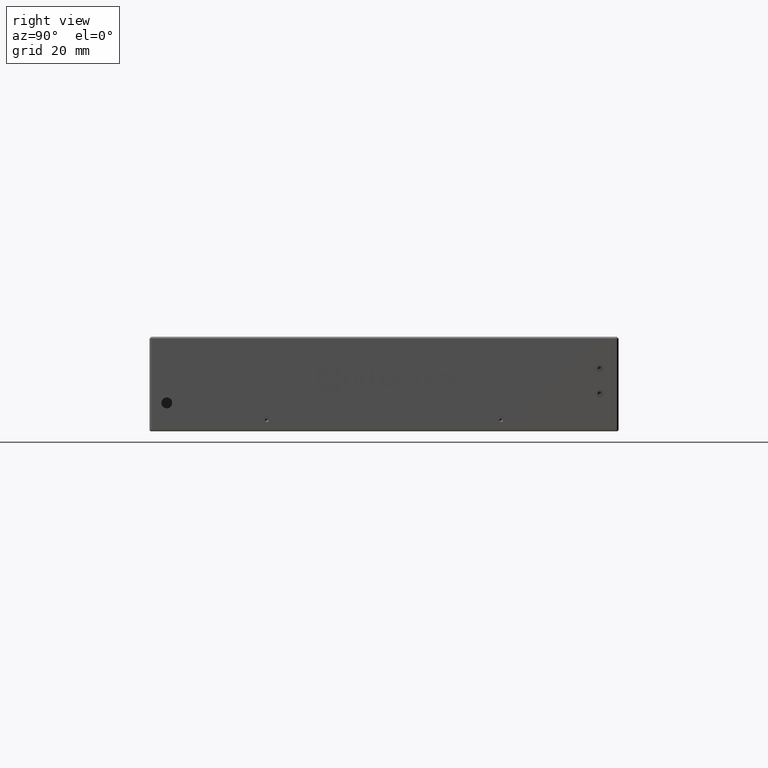
[diagram: clean part render]
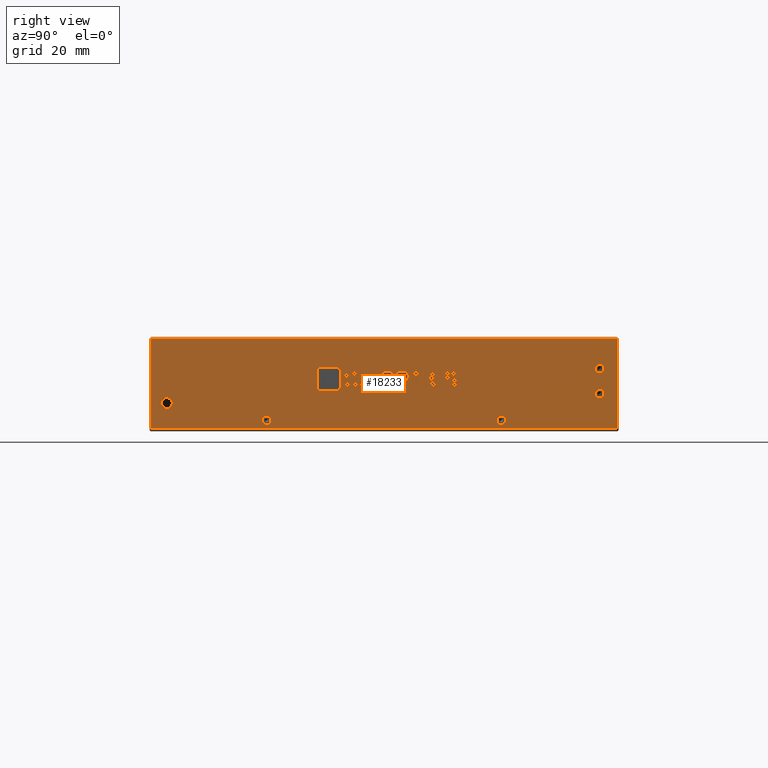
[diagram: same view with one face highlighted and labeled with its STEP entity id]
A machine part, right view. The second image highlights one B-rep face of the part: STEP entity #18233.
In plain terms, the highlighted planar face has unit normal (-1, -0, 0).
Its self-contained STEP definition (entity closure, byte-faithful):
#59 = VERTEX_POINT ( 'NONE', #20254 ) ;
#63 = VERTEX_POINT ( 'NONE', #15595 ) ;
#122 = CARTESIAN_POINT ( 'NONE',  ( 65.16824938067711100, 24.75813051708584900, 14.13872348217448400 ) ) ;
#145 = EDGE_CURVE ( 'NONE', #14082, #13964, #6813, .T. ) ;
#149 = VERTEX_POINT ( 'NONE', #2572 ) ;
#151 = CARTESIAN_POINT ( 'NONE',  ( 65.16824938067712500, -0.5241842476515578000, 13.43307177855084000 ) ) ;
#199 = EDGE_CURVE ( 'NONE', #5570, #13813, #8393, .T. ) ;
#228 = B_SPLINE_CURVE_WITH_KNOTS ( 'NONE', 3,
 ( #1044, #15267, #9018, #19997 ),
 .UNSPECIFIED., .F., .F.,
 ( 4, 4 ),
 ( 4.000000000000000000, 5.000000000000000000 ),
 .UNSPECIFIED. ) ;
#275 = ORIENTED_EDGE ( 'NONE', *, *, #3788, .F. ) ;
#279 = DIRECTION ( 'NONE',  ( -0.0000000000000000000, 1.000000000000000000, 3.331606031765669500E-015 ) ) ;
#280 = CARTESIAN_POINT ( 'NONE',  ( 65.16824938067712500, 27.66524246949252200, 13.48756069147683300 ) ) ;
#286 = B_SPLINE_CURVE_WITH_KNOTS ( 'NONE', 3,
 ( #7281, #5685, #2535, #18279 ),
 .UNSPECIFIED., .F., .F.,
 ( 4, 4 ),
 ( 4.000000000000000000, 5.000000000000000000 ),
 .UNSPECIFIED. ) ;
#289 = EDGE_CURVE ( 'NONE', #16196, #4808, #15920, .T. ) ;
#319 = EDGE_CURVE ( 'NONE', #16228, #4469, #11564, .T. ) ;
#357 = B_SPLINE_CURVE_WITH_KNOTS ( 'NONE', 3,
 ( #15202, #4189, #4255, #15268 ),
 .UNSPECIFIED., .F., .F.,
 ( 4, 4 ),
 ( 1.000000000000000000, 2.000000000000000000 ),
 .UNSPECIFIED. ) ;
#369 = VERTEX_POINT ( 'NONE', #2235 ) ;
#380 = CARTESIAN_POINT ( 'NONE',  ( 65.16824938067712500, 33.78327924612888500, 13.65799065361855300 ) ) ;
#418 = FACE_BOUND ( 'NONE', #12467, .T. ) ;
#436 = VECTOR ( 'NONE', #2802, 1000.000000000000000 ) ;
#448 = VERTEX_POINT ( 'NONE', #8688 ) ;
#515 = ORIENTED_EDGE ( 'NONE', *, *, #17811, .F. ) ;
#544 = CARTESIAN_POINT ( 'NONE',  ( 65.16824938067712500, 34.08709211795113700, 10.53407231938382600 ) ) ;
#553 = VERTEX_POINT ( 'NONE', #7898 ) ;
#563 = CARTESIAN_POINT ( 'NONE',  ( 65.16824938067712500, 15.81965025748621700, 10.88290952868605100 ) ) ;
#603 = CARTESIAN_POINT ( 'NONE',  ( 65.16824938067711100, 32.17781683401410900, 9.045700226360548200 ) ) ;
#604 = CIRCLE ( 'NONE', #9038, 1.399999999999998600 ) ;
#611 = B_SPLINE_CURVE_WITH_KNOTS ( 'NONE', 3,
 ( #18785, #3033, #7790, #9374 ),
 .UNSPECIFIED., .F., .F.,
 ( 4, 4 ),
 ( 9.000000000000000000, 10.00000000000000000 ),
 .UNSPECIFIED. ) ;
#644 = CARTESIAN_POINT ( 'NONE',  ( 65.16824938067711100, 5.167405801023374300, 9.045700226360459300 ) ) ;
#664 = DIRECTION ( 'NONE',  ( 0.0000000000000000000, 0.0000000000000000000, -1.000000000000000000 ) ) ;
#672 = CARTESIAN_POINT ( 'NONE',  ( 65.16824938067712500, 33.02394987890334500, 10.46430487752336100 ) ) ;
#696 = ORIENTED_EDGE ( 'NONE', *, *, #2222, .F. ) ;
#724 = CARTESIAN_POINT ( 'NONE',  ( 65.16824938067712500, -10.22698271773305100, 15.46465684212606500 ) ) ;
#737 = CARTESIAN_POINT ( 'NONE',  ( 65.16824938067712500, 29.66132143109356200, 12.55732813333732900 ) ) ;
#754 = ORIENTED_EDGE ( 'NONE', *, *, #12379, .F. ) ;
#755 = CARTESIAN_POINT ( 'NONE',  ( 65.16824938067712500, 7.293555070898903200, 11.30151417984885700 ) ) ;
#756 = ORIENTED_EDGE ( 'NONE', *, *, #16882, .F. ) ;
#825 = EDGE_CURVE ( 'NONE', #17927, #13226, #17888, .T. ) ;
#834 = VERTEX_POINT ( 'NONE', #5717 ) ;
#835 = CARTESIAN_POINT ( 'NONE',  ( 65.16824938067712500, 21.59060753168828100, 13.44104906356980700 ) ) ;
#850 = CARTESIAN_POINT ( 'NONE',  ( 65.16824938067712500, 27.66524246949252200, 13.48756069147683300 ) ) ;
#903 = FACE_BOUND ( 'NONE', #8215, .T. ) ;
#919 = CARTESIAN_POINT ( 'NONE',  ( 65.16824938067712500, -3.694529350251845000, 15.46465684212607500 ) ) ;
#930 = EDGE_CURVE ( 'NONE', #4469, #5570, #19454, .T. ) ;
#938 = DIRECTION ( 'NONE',  ( -0.0000000000000000000, -1.000000000000000000, -2.934251533065247700E-015 ) ) ;
#955 = CARTESIAN_POINT ( 'NONE',  ( 65.16824938067712500, 32.79963944082852800, 13.19287437454876700 ) ) ;
#957 = CARTESIAN_POINT ( 'NONE',  ( 65.16824938067712500, 25.36562105251038800, 11.62709557519774800 ) ) ;
#979 = CARTESIAN_POINT ( 'NONE',  ( 65.16824938067712500, 1.146313318600481500, 13.25500255194186200 ) ) ;
#985 = CARTESIAN_POINT ( 'NONE',  ( 65.16824938067712500, -4.591718325310594700, 15.46465684212608400 ) ) ;
#988 = VERTEX_POINT ( 'NONE', #20268 ) ;
#989 = VERTEX_POINT ( 'NONE', #10873 ) ;
#1035 = EDGE_CURVE ( 'NONE', #3982, #7492, #611, .T. ) ;
#1039 = ORIENTED_EDGE ( 'NONE', *, *, #3726, .F. ) ;
#1044 = CARTESIAN_POINT ( 'NONE',  ( 65.16824938067712500, 30.29044528182377900, 12.83639790077915600 ) ) ;
#1065 = EDGE_CURVE ( 'NONE', #17169, #6580, #4843, .T. ) ;
#1082 = LINE ( 'NONE', #6271, #13153 ) ;
#1098 = VECTOR ( 'NONE', #20099, 1000.000000000000000 ) ;
#1113 = VERTEX_POINT ( 'NONE', #14245 ) ;
#1121 = CARTESIAN_POINT ( 'NONE',  ( 65.16824938067712500, 31.59926085781094300, 12.20849092403499200 ) ) ;
#1137 = CARTESIAN_POINT ( 'NONE',  ( 65.16824938067712500, 30.18187308063425400, 9.975932784500050900 ) ) ;
#1155 = CARTESIAN_POINT ( 'NONE',  ( 65.16824938067712500, 34.08709211795113700, 10.53407231938382600 ) ) ;
#1156 = DIRECTION ( 'NONE',  ( -0.0000000000000000000, 4.972873964466782800E-015, -1.000000000000000000 ) ) ;
#1157 = CARTESIAN_POINT ( 'NONE',  ( 65.16824938067712500, 23.13089958144520300, 13.44104906356981200 ) ) ;
#1212 = ORIENTED_EDGE ( 'NONE', *, *, #5036, .F. ) ;
#1219 = EDGE_CURVE ( 'NONE', #9359, #19953, #5296, .T. ) ;
#1244 = EDGE_CURVE ( 'NONE', #11274, #5778, #2211, .T. ) ;
#1345 = CARTESIAN_POINT ( 'NONE',  ( 65.16824938067711100, 48.24938067712633200, -2.899999999999940800 ) ) ;
#1384 = CARTESIAN_POINT ( 'NONE',  ( 65.16824938067712500, 2.390364156891194200, 12.74337464496510800 ) ) ;
#1393 = AXIS2_PLACEMENT_3D ( 'NONE', #3662, #14673, #5249 ) ;
#1463 = LINE ( 'NONE', #16909, #17206 ) ;
#1477 = EDGE_CURVE ( 'NONE', #5778, #20122, #5358, .T. ) ;
#1508 = CARTESIAN_POINT ( 'NONE',  ( 65.16824938067712500, 30.18187308063425400, 9.975932784500050900 ) ) ;
#1517 = CARTESIAN_POINT ( 'NONE',  ( 65.16824938067712500, 17.96013159875141700, 14.13872348217445600 ) ) ;
#1557 = CARTESIAN_POINT ( 'NONE',  ( 65.16824938067712500, 13.30301964634506700, 9.138723482174489400 ) ) ;
#1608 = B_SPLINE_CURVE_WITH_KNOTS ( 'NONE', 3,
 ( #7946, #8013, #151, #11171 ),
 .UNSPECIFIED., .F., .F.,
 ( 4, 4 ),
 ( 2.000000000000000000, 3.000000000000000000 ),
 .UNSPECIFIED. ) ;
#1623 = EDGE_CURVE ( 'NONE', #1113, #3127, #1463, .T. ) ;
#1669 = CARTESIAN_POINT ( 'NONE',  ( 65.16824938067712500, 2.412132680417292900, 10.16197929612791200 ) ) ;
#1685 = EDGE_LOOP ( 'NONE', ( #9927, #7033, #12674, #14054 ) ) ;
#1691 = ORIENTED_EDGE ( 'NONE', *, *, #15449, .F. ) ;
#1840 = CARTESIAN_POINT ( 'NONE',  ( 65.16824938067712500, 15.81965025748621700, 10.88290952868605100 ) ) ;
#1859 = CARTESIAN_POINT ( 'NONE',  ( 65.16824938067712500, 16.81762213417625800, 10.88290952868605500 ) ) ;
#1864 = CARTESIAN_POINT ( 'NONE',  ( 65.16824938067712500, 9.578574000049792800, 13.27825836589535100 ) ) ;
#1876 = CARTESIAN_POINT ( 'NONE',  ( 65.16824938067712500, -26.75061932287365400, -2.899999999999937300 ) ) ;
#1882 = B_SPLINE_CURVE_WITH_KNOTS ( 'NONE', 3,
 ( #5749, #8783, #8917, #10502 ),
 .UNSPECIFIED., .F., .F.,
 ( 4, 4 ),
 ( 5.000000000000000000, 6.000000000000000000 ),
 .UNSPECIFIED. ) ;
#1916 = FACE_BOUND ( 'NONE', #2618, .T. ) ;
#1938 = ORIENTED_EDGE ( 'NONE', *, *, #16219, .F. ) ;
#1940 = ORIENTED_EDGE ( 'NONE', *, *, #2492, .F. ) ;
#2048 = VERTEX_POINT ( 'NONE', #8287 ) ;
#2099 = ORIENTED_EDGE ( 'NONE', *, *, #825, .F. ) ;
#2144 = CARTESIAN_POINT ( 'NONE',  ( 65.16824938067712500, 29.66132143109356200, 12.55732813333732900 ) ) ;
#2174 = CARTESIAN_POINT ( 'NONE',  ( 65.16824938067712500, 3.084658369979397500, 11.25500255194186700 ) ) ;
#2211 = B_SPLINE_CURVE_WITH_KNOTS ( 'NONE', 3,
 ( #6299, #1557, #12548, #17301 ),
 .UNSPECIFIED., .F., .F.,
 ( 4, 4 ),
 ( 0.0000000000000000000, 1.000000000000000000 ),
 .UNSPECIFIED. ) ;
#2222 = EDGE_CURVE ( 'NONE', #10585, #988, #11433, .T. ) ;
#2235 = CARTESIAN_POINT ( 'NONE',  ( 65.16824938067712500, -10.68911332103984400, 13.83326944970997900 ) ) ;
#2243 = ORIENTED_EDGE ( 'NONE', *, *, #5279, .F. ) ;
#2269 = ORIENTED_EDGE ( 'NONE', *, *, #6326, .F. ) ;
#2297 = VERTEX_POINT ( 'NONE', #8957 ) ;
#2325 = CARTESIAN_POINT ( 'NONE',  ( 65.16824938067709600, 79.74938067712632500, 15.00000000000006200 ) ) ;
#2327 = CARTESIAN_POINT ( 'NONE',  ( 65.16824938067712500, -1.182107449382512100, 9.107828403753638100 ) ) ;
#2345 = CARTESIAN_POINT ( 'NONE',  ( 65.16824938067709600, 79.74938067712632500, 5.600000000000076900 ) ) ;
#2375 = EDGE_CURVE ( 'NONE', #12892, #18982, #14587, .T. ) ;
#2416 = CARTESIAN_POINT ( 'NONE',  ( 65.16824938067712500, 13.27394987890316900, 14.11546766822095100 ) ) ;
#2424 = CARTESIAN_POINT ( 'NONE',  ( 65.16824938067712500, -58.75061932287363900, 5.750000000000056800 ) ) ;
#2439 = CARTESIAN_POINT ( 'NONE',  ( 65.16824938067712500, 31.33181899734561400, 9.712141545992828600 ) ) ;
#2452 = LINE ( 'NONE', #19038, #18197 ) ;
#2481 = CARTESIAN_POINT ( 'NONE',  ( 65.16824938067712500, 32.72743825099655600, 11.12310693268827300 ) ) ;
#2492 = EDGE_CURVE ( 'NONE', #5413, #14448, #18073, .T. ) ;
#2535 = CARTESIAN_POINT ( 'NONE',  ( 65.16824938067712500, 5.926735168249042100, 9.688885732039171500 ) ) ;
#2542 = ORIENTED_EDGE ( 'NONE', *, *, #7249, .F. ) ;
#2561 = LINE ( 'NONE', #13738, #18796 ) ;
#2568 = CARTESIAN_POINT ( 'NONE',  ( 65.16824938067712500, 1.305723810758213200, 12.74337464496510500 ) ) ;
#2572 = CARTESIAN_POINT ( 'NONE',  ( 65.16824938067712500, 1.435794119033050100, 11.32476999380229500 ) ) ;
#2618 = EDGE_LOOP ( 'NONE', ( #1212, #1039, #9821, #696, #2269, #9236, #11983, #4186, #18888, #13055, #11773, #17825, #20177, #14447 ) ) ;
#2682 = AXIS2_PLACEMENT_3D ( 'NONE', #13375, #3915, #14929 ) ;
#2753 = AXIS2_PLACEMENT_3D ( 'NONE', #2780, #13790, #4357 ) ;
#2775 = CARTESIAN_POINT ( 'NONE',  ( 65.16824938067712500, 6.252181355376973400, 10.99918859845353900 ) ) ;
#2780 = CARTESIAN_POINT ( 'NONE',  ( 65.16824938067712500, -64.25061932287364600, -3.999999999999937800 ) ) ;
#2786 = CARTESIAN_POINT ( 'NONE',  ( 65.16824938067712500, 19.00894176641009300, 14.13872348217445900 ) ) ;
#2787 = VECTOR ( 'NONE', #16126, 1000.000000000000000 ) ;
#2802 = DIRECTION ( 'NONE',  ( -1.665334536937734600E-016, 1.000000000000000000, 0.0000000000000000000 ) ) ;
#2820 = VECTOR ( 'NONE', #11872, 1000.000000000000000 ) ;
#2824 = CARTESIAN_POINT ( 'NONE',  ( 65.16824938067712500, 4.126032085501441000, 10.99918859845353400 ) ) ;
#2858 = DIRECTION ( 'NONE',  ( -0.0000000000000000000, 1.000000000000000000, 3.402735665913043100E-015 ) ) ;
#2860 = ORIENTED_EDGE ( 'NONE', *, *, #1623, .F. ) ;
#2889 = B_SPLINE_CURVE_WITH_KNOTS ( 'NONE', 3,
 ( #15753, #9581, #14312, #4897 ),
 .UNSPECIFIED., .F., .F.,
 ( 4, 4 ),
 ( 3.000000000000000000, 4.000000000000000000 ),
 .UNSPECIFIED. ) ;
#2893 = EDGE_CURVE ( 'NONE', #5067, #20034, #4755, .T. ) ;
#2922 = ORIENTED_EDGE ( 'NONE', *, *, #14417, .F. ) ;
#2956 = CARTESIAN_POINT ( 'NONE',  ( 65.16824938067712500, 20.54923381616679400, 13.44104906356980300 ) ) ;
#3013 = DIRECTION ( 'NONE',  ( -0.0000000000000000000, -1.000000000000000000, -3.331606031764248800E-015 ) ) ;
#3025 = LINE ( 'NONE', #17541, #10904 ) ;
#3033 = CARTESIAN_POINT ( 'NONE',  ( 65.16824938067712500, 31.33884982481993100, 13.27028108087648100 ) ) ;
#3072 = CARTESIAN_POINT ( 'NONE',  ( 65.16824938067712500, 21.59060753168829500, 9.138723482174519600 ) ) ;
#3086 = CARTESIAN_POINT ( 'NONE',  ( 65.16824938067712500, 16.81762213417625800, 10.88290952868605500 ) ) ;
#3127 = VERTEX_POINT ( 'NONE', #10073 ) ;
#3128 = CARTESIAN_POINT ( 'NONE',  ( 65.16824938067712500, -58.75061932287363900, 4.000000000000062200 ) ) ;
#3255 = CARTESIAN_POINT ( 'NONE',  ( 65.16824938067712500, -10.68911332103982700, 9.367329644754431000 ) ) ;
#3276 = VERTEX_POINT ( 'NONE', #7603 ) ;
#3392 = B_SPLINE_CURVE_WITH_KNOTS ( 'NONE', 3,
 ( #5924, #4343, #12249, #2824 ),
 .UNSPECIFIED., .F., .F.,
 ( 4, 4 ),
 ( 3.000000000000000000, 4.000000000000000000 ),
 .UNSPECIFIED. ) ;
#3425 = LINE ( 'NONE', #17842, #14972 ) ;
#3429 = VERTEX_POINT ( 'NONE', #2144 ) ;
#3447 = B_SPLINE_CURVE_WITH_KNOTS ( 'NONE', 3,
 ( #13866, #12274, #13792, #4429 ),
 .UNSPECIFIED., .F., .F.,
 ( 4, 4 ),
 ( 3.000000000000000000, 4.000000000000000000 ),
 .UNSPECIFIED. ) ;
#3450 = EDGE_CURVE ( 'NONE', #12326, #12263, #12816, .T. ) ;
#3507 = ORIENTED_EDGE ( 'NONE', *, *, #5168, .F. ) ;
#3516 = ORIENTED_EDGE ( 'NONE', *, *, #9907, .F. ) ;
#3545 = LINE ( 'NONE', #10950, #16095 ) ;
#3593 = EDGE_CURVE ( 'NONE', #9931, #8780, #2561, .T. ) ;
#3611 = CARTESIAN_POINT ( 'NONE',  ( 65.16824938067712500, -9.329535523598261500, 8.007806174878934900 ) ) ;
#3642 = CARTESIAN_POINT ( 'NONE',  ( 65.16824938067712500, 29.55274922990391700, 10.83639790077912400 ) ) ;
#3662 = CARTESIAN_POINT ( 'NONE',  ( 65.16824938067709600, 79.74938067712632500, 7.000000000000062200 ) ) ;
#3677 = EDGE_CURVE ( 'NONE', #63, #10069, #14382, .T. ) ;
#3726 = EDGE_CURVE ( 'NONE', #3276, #15120, #15962, .T. ) ;
#3779 = CARTESIAN_POINT ( 'NONE',  ( 65.16824938067712500, 7.293555070898903200, 11.30151417984885700 ) ) ;
#3788 = EDGE_CURVE ( 'NONE', #13769, #3429, #3025, .T. ) ;
#3790 = EDGE_CURVE ( 'NONE', #4865, #19549, #19272, .T. ) ;
#3794 = EDGE_LOOP ( 'NONE', ( #14443, #15364, #11846, #13982, #11459, #14199, #2243, #4337 ) ) ;
#3846 = CARTESIAN_POINT ( 'NONE',  ( 65.16824938067712500, 20.54923381616679400, 13.44104906356980300 ) ) ;
#3878 = DIRECTION ( 'NONE',  ( 0.0000000000000000000, 0.0000000000000000000, -1.000000000000000000 ) ) ;
#3884 = CARTESIAN_POINT ( 'NONE',  ( 65.16824938067711100, 27.60020731535527400, 14.20849092403492400 ) ) ;
#3896 = ORIENTED_EDGE ( 'NONE', *, *, #17969, .F. ) ;
#3915 = DIRECTION ( 'NONE',  ( 1.000000000000000000, 1.665334536937734600E-016, 0.0000000000000000000 ) ) ;
#3959 = ORIENTED_EDGE ( 'NONE', *, *, #18187, .T. ) ;
#3967 = EDGE_CURVE ( 'NONE', #16438, #16377, #286, .T. ) ;
#3982 = VERTEX_POINT ( 'NONE', #7346 ) ;
#3988 = CARTESIAN_POINT ( 'NONE',  ( 65.16824938067712500, 32.02597800221319300, 9.696863017058206000 ) ) ;
#3990 = EDGE_CURVE ( 'NONE', #4808, #5640, #1882, .T. ) ;
#4016 = VECTOR ( 'NONE', #11112, 1000.000000000000000 ) ;
#4022 = CARTESIAN_POINT ( 'NONE',  ( 65.16824938067711100, 23.13089958144519500, 14.13872348217447300 ) ) ;
#4037 = ORIENTED_EDGE ( 'NONE', *, *, #13928, .F. ) ;
#4087 = EDGE_CURVE ( 'NONE', #17419, #11696, #3447, .T. ) ;
#4148 = LINE ( 'NONE', #14033, #8354 ) ;
#4151 = DIRECTION ( 'NONE',  ( -1.053011137364058000E-016, 1.000000000000000000, 0.0000000000000000000 ) ) ;
#4177 = VERTEX_POINT ( 'NONE', #3072 ) ;
#4186 = ORIENTED_EDGE ( 'NONE', *, *, #3450, .F. ) ;
#4189 = CARTESIAN_POINT ( 'NONE',  ( 65.16824938067712500, 9.578574000049803400, 9.991211313434606100 ) ) ;
#4193 = B_SPLINE_CURVE_WITH_KNOTS ( 'NONE', 3,
 ( #8789, #10376, #955, #11954 ),
 .UNSPECIFIED., .F., .F.,
 ( 4, 4 ),
 ( 8.000000000000000000, 9.000000000000000000 ),
 .UNSPECIFIED. ) ;
#4255 = CARTESIAN_POINT ( 'NONE',  ( 65.16824938067712500, 10.35250585510661600, 9.138723482174478700 ) ) ;
#4314 = CARTESIAN_POINT ( 'NONE',  ( 65.16824938067712500, 23.73839011686996200, 9.138723482174524900 ) ) ;
#4329 = B_SPLINE_CURVE_WITH_KNOTS ( 'NONE', 3,
 ( #672, #10095, #18008, #8583 ),
 .UNSPECIFIED., .F., .F.,
 ( 4, 4 ),
 ( 2.000000000000000000, 3.000000000000000000 ),
 .UNSPECIFIED. ) ;
#4337 = ORIENTED_EDGE ( 'NONE', *, *, #3990, .F. ) ;
#4343 = CARTESIAN_POINT ( 'NONE',  ( 65.16824938067712500, 4.480277623630124500, 9.720118831011625100 ) ) ;
#4357 = DIRECTION ( 'NONE',  ( -1.053011137364058000E-016, 1.000000000000000000, 0.0000000000000000000 ) ) ;
#4359 = EDGE_CURVE ( 'NONE', #2297, #16196, #6617, .T. ) ;
#4395 = CARTESIAN_POINT ( 'NONE',  ( 65.16824938067712500, 26.19715160956848600, 9.123444953239964400 ) ) ;
#4429 = CARTESIAN_POINT ( 'NONE',  ( 65.16824938067712500, 26.42862808333812200, 11.58058394729075000 ) ) ;
#4469 = VERTEX_POINT ( 'NONE', #16462 ) ;
#4587 = FACE_BOUND ( 'NONE', #12048, .T. ) ;
#4614 = VERTEX_POINT ( 'NONE', #12365 ) ;
#4658 = CARTESIAN_POINT ( 'NONE',  ( 65.16824938067711100, 18.50988822395471100, 12.51081650543025800 ) ) ;
#4702 = DIRECTION ( 'NONE',  ( 0.0000000000000000000, 0.0000000000000000000, -1.000000000000000000 ) ) ;
#4726 = ORIENTED_EDGE ( 'NONE', *, *, #18033, .F. ) ;
#4746 = CARTESIAN_POINT ( 'NONE',  ( 65.16824938067712500, 26.42862808333812200, 11.58058394729075000 ) ) ;
#4755 = CIRCLE ( 'NONE', #11188, 1.399999999999995000 ) ;
#4773 = EDGE_CURVE ( 'NONE', #11343, #14667, #13777, .T. ) ;
#4808 = VERTEX_POINT ( 'NONE', #13211 ) ;
#4834 = ORIENTED_EDGE ( 'NONE', *, *, #17149, .F. ) ;
#4843 = LINE ( 'NONE', #6278, #16894 ) ;
#4865 = VERTEX_POINT ( 'NONE', #19659 ) ;
#4897 = CARTESIAN_POINT ( 'NONE',  ( 65.16824938067712500, -0.9940328144448810100, 11.62709557519765500 ) ) ;
#4942 = CARTESIAN_POINT ( 'NONE',  ( 65.16824938067712500, -3.232262842168593100, 9.367329644754457600 ) ) ;
#4987 = B_SPLINE_CURVE_WITH_KNOTS ( 'NONE', 3,
 ( #2174, #16322, #10071, #644 ),
 .UNSPECIFIED., .F., .F.,
 ( 4, 4 ),
 ( 9.000000000000000000, 10.00000000000000000 ),
 .UNSPECIFIED. ) ;
#5036 = EDGE_CURVE ( 'NONE', #15120, #14564, #9094, .T. ) ;
#5067 = VERTEX_POINT ( 'NONE', #12428 ) ;
#5084 = CARTESIAN_POINT ( 'NONE',  ( 65.16824938067712500, 1.435794119033050100, 11.32476999380229500 ) ) ;
#5091 = ORIENTED_EDGE ( 'NONE', *, *, #3967, .F. ) ;
#5101 = FACE_BOUND ( 'NONE', #5493, .T. ) ;
#5135 = CARTESIAN_POINT ( 'NONE',  ( 65.16824938067712500, 32.04774652573915700, 14.20849092403494000 ) ) ;
#5168 = EDGE_CURVE ( 'NONE', #10537, #17169, #2452, .T. ) ;
#5176 = ORIENTED_EDGE ( 'NONE', *, *, #17853, .F. ) ;
#5249 = DIRECTION ( 'NONE',  ( 0.0000000000000000000, 0.0000000000000000000, -1.000000000000000000 ) ) ;
#5276 = CARTESIAN_POINT ( 'NONE',  ( 65.16824938067712500, 33.45039660686421000, 11.85167642971370900 ) ) ;
#5279 = EDGE_CURVE ( 'NONE', #5640, #14082, #11548, .T. ) ;
#5296 = CIRCLE ( 'NONE', #19413, 1.749999999999994700 ) ;
#5303 = EDGE_LOOP ( 'NONE', ( #4037, #17729, #14698, #12170, #10730, #15011, #5091, #2922, #10884, #16565 ) ) ;
#5331 = VERTEX_POINT ( 'NONE', #13605 ) ;
#5355 = CARTESIAN_POINT ( 'NONE',  ( 65.16824938067712500, 32.04774652573915700, 14.20849092403494000 ) ) ;
#5358 = B_SPLINE_CURVE_WITH_KNOTS ( 'NONE', 3,
 ( #19656, #11826, #2416, #13415 ),
 .UNSPECIFIED., .F., .F.,
 ( 4, 4 ),
 ( 3.000000000000000000, 4.000000000000000000 ),
 .UNSPECIFIED. ) ;
#5413 = VERTEX_POINT ( 'NONE', #1157 ) ;
#5464 = CARTESIAN_POINT ( 'NONE',  ( 65.16824938067712500, -10.68911332103984400, 13.83326944970997900 ) ) ;
#5488 = DIRECTION ( 'NONE',  ( -0.0000000000000000000, 3.315249309644624600E-015, -1.000000000000000000 ) ) ;
#5489 = CARTESIAN_POINT ( 'NONE',  ( 65.16824938067712500, 33.02394987890334500, 10.46430487752336100 ) ) ;
#5493 = EDGE_LOOP ( 'NONE', ( #20353, #17857, #8532, #756, #2860, #13291, #8672 ) ) ;
#5513 = CARTESIAN_POINT ( 'NONE',  ( 65.16824938067712500, 1.435794119033053200, 10.48756069147676400 ) ) ;
#5517 = VECTOR ( 'NONE', #6455, 1000.000000000000000 ) ;
#5570 = VERTEX_POINT ( 'NONE', #11063 ) ;
#5579 = FACE_BOUND ( 'NONE', #6176, .T. ) ;
#5592 = CARTESIAN_POINT ( 'NONE',  ( 65.16824938067712500, 30.71689200978489600, 10.09985111873480400 ) ) ;
#5624 = DIRECTION ( 'NONE',  ( -0.0000000000000000000, -3.295296174582278100E-015, 1.000000000000000000 ) ) ;
#5630 = CARTESIAN_POINT ( 'NONE',  ( 65.16824938067712500, 33.02394987890334500, 10.46430487752336100 ) ) ;
#5640 = VERTEX_POINT ( 'NONE', #4942 ) ;
#5685 = CARTESIAN_POINT ( 'NONE',  ( 65.16824938067712500, 6.280980706377614600, 10.11546766822089400 ) ) ;
#5717 = CARTESIAN_POINT ( 'NONE',  ( 65.16824938067712500, 7.293555070898894300, 14.13872348217441700 ) ) ;
#5749 = CARTESIAN_POINT ( 'NONE',  ( 65.16824938067712500, -4.591718325310571600, 8.007806174878947300 ) ) ;
#5778 = VERTEX_POINT ( 'NONE', #16259 ) ;
#5876 = PLANE ( 'NONE',  #2753 ) ;
#5890 = CIRCLE ( 'NONE', #13171, 1.399999999999998600 ) ;
#5924 = CARTESIAN_POINT ( 'NONE',  ( 65.16824938067712500, 5.189039116328952900, 9.720118831011632200 ) ) ;
#5978 = CARTESIAN_POINT ( 'NONE',  ( 65.16824938067712500, 19.00894176641009300, 14.13872348217445900 ) ) ;
#6028 = CARTESIAN_POINT ( 'NONE',  ( 65.16824938067712500, -1.203875972908508200, 14.13074619715549800 ) ) ;
#6030 = LINE ( 'NONE', #19974, #13914 ) ;
#6073 = CARTESIAN_POINT ( 'NONE',  ( 65.16824938067712500, 27.66524246949252200, 13.48756069147683300 ) ) ;
#6084 = LINE ( 'NONE', #17919, #10277 ) ;
#6107 = CARTESIAN_POINT ( 'NONE',  ( 65.16824938067712500, 34.08709211795113700, 10.53407231938382600 ) ) ;
#6176 = EDGE_LOOP ( 'NONE', ( #13176, #4726, #275, #7627, #17617, #19485, #20396, #1691, #18569, #15806 ) ) ;
#6182 = CARTESIAN_POINT ( 'NONE',  ( 65.16824938067712500, 30.67349017095300600, 9.309491464867825500 ) ) ;
#6184 = ORIENTED_EDGE ( 'NONE', *, *, #14881, .F. ) ;
#6186 = ORIENTED_EDGE ( 'NONE', *, *, #20323, .F. ) ;
#6187 = CARTESIAN_POINT ( 'NONE',  ( 65.16824938067712500, 18.52408508712365900, 13.59586247622529200 ) ) ;
#6237 = CARTESIAN_POINT ( 'NONE',  ( 65.16824938067712500, 30.29044528182377900, 12.83639790077915600 ) ) ;
#6249 = CARTESIAN_POINT ( 'NONE',  ( 65.16824938067711100, 32.17781683401410900, 9.045700226360548200 ) ) ;
#6271 = CARTESIAN_POINT ( 'NONE',  ( 65.16824938067712500, 21.59060753168828100, 13.44104906356980700 ) ) ;
#6278 = CARTESIAN_POINT ( 'NONE',  ( 65.16824938067712500, 24.75813051708585300, 14.13872348217448000 ) ) ;
#6299 = CARTESIAN_POINT ( 'NONE',  ( 65.16824938067712500, 11.82776275072584000, 9.045700226360477100 ) ) ;
#6326 = EDGE_CURVE ( 'NONE', #20185, #10585, #4329, .T. ) ;
#6339 = CARTESIAN_POINT ( 'NONE',  ( 65.16824938067709600, 79.74938067712632500, 16.40000000000004500 ) ) ;
#6349 = B_SPLINE_CURVE_WITH_KNOTS ( 'NONE', 3,
 ( #11391, #380, #14547, #5135 ),
 .UNSPECIFIED., .F., .F.,
 ( 4, 4 ),
 ( 6.000000000000000000, 7.000000000000000000 ),
 .UNSPECIFIED. ) ;
#6455 = DIRECTION ( 'NONE',  ( -0.0000000000000000000, -4.972873964466782800E-015, 1.000000000000000000 ) ) ;
#6536 = CARTESIAN_POINT ( 'NONE',  ( 65.16824938067712500, 26.44296015472801600, 12.82078135129288300 ) ) ;
#6580 = VERTEX_POINT ( 'NONE', #122 ) ;
#6617 = B_SPLINE_CURVE_WITH_KNOTS ( 'NONE', 3,
 ( #9888, #19295, #13049, #3611 ),
 .UNSPECIFIED., .F., .F.,
 ( 4, 4 ),
 ( 7.000000000000000000, 8.000000000000000000 ),
 .UNSPECIFIED. ) ;
#6658 = EDGE_LOOP ( 'NONE', ( #18280, #19899, #3507, #20109 ) ) ;
#6813 = B_SPLINE_CURVE_WITH_KNOTS ( 'NONE', 3,
 ( #10408, #7251, #919, #985 ),
 .UNSPECIFIED., .F., .F.,
 ( 4, 4 ),
 ( 3.000000000000000000, 4.000000000000000000 ),
 .UNSPECIFIED. ) ;
#6815 = CARTESIAN_POINT ( 'NONE',  ( 65.16824938067712500, 27.88225166365188200, 9.720118831011705000 ) ) ;
#6866 = CARTESIAN_POINT ( 'NONE',  ( 65.16824938067712500, 14.80004506549058600, 14.13872348217444300 ) ) ;
#6938 = CARTESIAN_POINT ( 'NONE',  ( 65.16824938067712500, 30.29044528182377900, 12.83639790077915600 ) ) ;
#7003 = CARTESIAN_POINT ( 'NONE',  ( 65.16824938067712500, 0.04734090107771832300, 11.32476999380229000 ) ) ;
#7033 = ORIENTED_EDGE ( 'NONE', *, *, #3593, .F. ) ;
#7055 = EDGE_LOOP ( 'NONE', ( #3959, #14791 ) ) ;
#7103 = CARTESIAN_POINT ( 'NONE',  ( 65.16824938067712500, 0.9222732969671507700, 9.704502281525437400 ) ) ;
#7146 = CARTESIAN_POINT ( 'NONE',  ( 65.16824938067712500, -3.232262842168608600, 14.10514696272902500 ) ) ;
#7149 = DIRECTION ( 'NONE',  ( -0.0000000000000000000, 1.000000000000000000, 3.295296257828142900E-015 ) ) ;
#7158 = DIRECTION ( 'NONE',  ( 1.000000000000000000, 1.665334536937734600E-016, 0.0000000000000000000 ) ) ;
#7197 = VERTEX_POINT ( 'NONE', #12587 ) ;
#7223 = VECTOR ( 'NONE', #14224, 1000.000000000000000 ) ;
#7231 = CARTESIAN_POINT ( 'NONE',  ( 65.16824938067711100, 85.24938067712626800, -3.999999999999937800 ) ) ;
#7249 = EDGE_CURVE ( 'NONE', #16010, #17162, #12672, .T. ) ;
#7251 = CARTESIAN_POINT ( 'NONE',  ( 65.16824938067712500, -3.232262842168608600, 15.00266213192530000 ) ) ;
#7260 = VERTEX_POINT ( 'NONE', #6339 ) ;
#7281 = CARTESIAN_POINT ( 'NONE',  ( 65.16824938067712500, 6.252181355376973400, 10.99918859845353900 ) ) ;
#7343 = DIRECTION ( 'NONE',  ( -1.000000000000000000, -1.665334536937734600E-016, -0.0000000000000000000 ) ) ;
#7346 = CARTESIAN_POINT ( 'NONE',  ( 65.16824938067712500, 31.35345231265129200, 12.83639790077916000 ) ) ;
#7353 = VERTEX_POINT ( 'NONE', #14444 ) ;
#7449 = CARTESIAN_POINT ( 'NONE',  ( 65.16824938067712500, 32.17781683401410200, 12.11546766822098700 ) ) ;
#7492 = VERTEX_POINT ( 'NONE', #19435 ) ;
#7540 = CARTESIAN_POINT ( 'NONE',  ( 65.16824938067712500, 14.80004506549058600, 14.13872348217444300 ) ) ;
#7548 = CARTESIAN_POINT ( 'NONE',  ( 65.16824938067712500, -0.9940328144448810100, 11.62709557519765500 ) ) ;
#7560 = VECTOR ( 'NONE', #7149, 1000.000000000000000 ) ;
#7585 = ORIENTED_EDGE ( 'NONE', *, *, #10106, .F. ) ;
#7603 = CARTESIAN_POINT ( 'NONE',  ( 65.16824938067712500, 30.18187308063425400, 9.975932784500050900 ) ) ;
#7627 = ORIENTED_EDGE ( 'NONE', *, *, #11079, .F. ) ;
#7634 = CARTESIAN_POINT ( 'NONE',  ( 65.16824938067712500, -1.977807827965313300, 13.27825836589531100 ) ) ;
#7654 = CARTESIAN_POINT ( 'NONE',  ( 65.16824938067712500, -2.035406529966368600, 11.65035138915111200 ) ) ;
#7770 = VECTOR ( 'NONE', #13869, 1000.000000000000000 ) ;
#7790 = CARTESIAN_POINT ( 'NONE',  ( 65.16824938067712500, 31.57749233428463500, 13.48756069147684600 ) ) ;
#7823 = CIRCLE ( 'NONE', #19362, 1.399999999999984600 ) ;
#7835 = DIRECTION ( 'NONE',  ( -0.0000000000000000000, -7.277376533366101600E-015, 1.000000000000000000 ) ) ;
#7898 = CARTESIAN_POINT ( 'NONE',  ( 65.16824938067712500, 0.04734090107771572000, 12.02244441240698000 ) ) ;
#7928 = CARTESIAN_POINT ( 'NONE',  ( 65.16824938067712500, 2.122651879984843500, 9.417793249616304200 ) ) ;
#7937 = VERTEX_POINT ( 'NONE', #18961 ) ;
#7943 = B_SPLINE_CURVE_WITH_KNOTS ( 'NONE', 3,
 ( #7449, #1121, #9029, #20008 ),
 .UNSPECIFIED., .F., .F.,
 ( 4, 4 ),
 ( 10.00000000000000000, 11.00000000000000000 ),
 .UNSPECIFIED. ) ;
#7946 = CARTESIAN_POINT ( 'NONE',  ( 65.16824938067712500, -0.9940328144448810100, 11.62709557519765500 ) ) ;
#7959 = CARTESIAN_POINT ( 'NONE',  ( 65.16824938067712500, 28.64158103087732200, 12.55732813333732500 ) ) ;
#7988 = ORIENTED_EDGE ( 'NONE', *, *, #8687, .F. ) ;
#8003 = CARTESIAN_POINT ( 'NONE',  ( 65.16824938067712500, 1.305723810758213200, 12.74337464496510500 ) ) ;
#8013 = CARTESIAN_POINT ( 'NONE',  ( 65.16824938067712500, -0.9506309756131043900, 12.80516480180664200 ) ) ;
#8058 = EDGE_CURVE ( 'NONE', #13543, #15045, #12205, .T. ) ;
#8089 = DIRECTION ( 'NONE',  ( 1.000000000000000000, 1.665334536937734600E-016, 0.0000000000000000000 ) ) ;
#8181 = CARTESIAN_POINT ( 'NONE',  ( 65.16824938067712500, 29.55274922990392400, 9.882909528686099100 ) ) ;
#8215 = EDGE_LOOP ( 'NONE', ( #18527, #515, #13800, #10986 ) ) ;
#8283 = ORIENTED_EDGE ( 'NONE', *, *, #4773, .F. ) ;
#8287 = CARTESIAN_POINT ( 'NONE',  ( 65.16824938067712500, 6.252181355376962700, 14.13872348217441300 ) ) ;
#8293 = FACE_BOUND ( 'NONE', #7055, .T. ) ;
#8304 = EDGE_CURVE ( 'NONE', #17762, #3982, #7943, .T. ) ;
#8325 = CARTESIAN_POINT ( 'NONE',  ( 65.16824938067712500, 11.82776275072582500, 14.20849092403486900 ) ) ;
#8354 = VECTOR ( 'NONE', #3013, 1000.000000000000000 ) ;
#8360 = EDGE_CURVE ( 'NONE', #5331, #12572, #604, .T. ) ;
#8392 = CARTESIAN_POINT ( 'NONE',  ( 65.16824938067712500, 30.33384712065566900, 13.73539735994626000 ) ) ;
#8393 = B_SPLINE_CURVE_WITH_KNOTS ( 'NONE', 3,
 ( #17610, #12789, #14428, #8181 ),
 .UNSPECIFIED., .F., .F.,
 ( 4, 4 ),
 ( 6.000000000000000000, 7.000000000000000000 ),
 .UNSPECIFIED. ) ;
#8432 = ORIENTED_EDGE ( 'NONE', *, *, #11348, .F. ) ;
#8527 = VERTEX_POINT ( 'NONE', #1840 ) ;
#8532 = ORIENTED_EDGE ( 'NONE', *, *, #9634, .F. ) ;
#8569 = VECTOR ( 'NONE', #15137, 1000.000000000000000 ) ;
#8583 = CARTESIAN_POINT ( 'NONE',  ( 65.16824938067712500, 32.02597800221319300, 9.696863017058206000 ) ) ;
#8598 = EDGE_CURVE ( 'NONE', #7353, #12326, #6349, .T. ) ;
#8610 = DIRECTION ( 'NONE',  ( 1.000000000000000000, 1.665334536937734600E-016, 0.0000000000000000000 ) ) ;
#8634 = CARTESIAN_POINT ( 'NONE',  ( 65.16824938067712500, 29.55274922990391700, 10.83639790077912400 ) ) ;
#8651 = CARTESIAN_POINT ( 'NONE',  ( 65.16824938067712500, 4.126032085501429400, 14.13872348217440800 ) ) ;
#8672 = ORIENTED_EDGE ( 'NONE', *, *, #11907, .F. ) ;
#8687 = EDGE_CURVE ( 'NONE', #11405, #5413, #6084, .T. ) ;
#8688 = CARTESIAN_POINT ( 'NONE',  ( 65.16824938067712500, 85.24938067712626800, -3.999999999999937800 ) ) ;
#8722 = CARTESIAN_POINT ( 'NONE',  ( 65.16824938067712500, 19.00894176641009600, 13.44104906356980000 ) ) ;
#8748 = VERTEX_POINT ( 'NONE', #850 ) ;
#8775 = FACE_OUTER_BOUND ( 'NONE', #1685, .T. ) ;
#8780 = VERTEX_POINT ( 'NONE', #10278 ) ;
#8783 = CARTESIAN_POINT ( 'NONE',  ( 65.16824938067712500, -3.694529350251822400, 8.007806174878952600 ) ) ;
#8789 = CARTESIAN_POINT ( 'NONE',  ( 65.16824938067712500, 32.06937984104507000, 13.48756069147684800 ) ) ;
#8795 = VECTOR ( 'NONE', #10639, 1000.000000000000000 ) ;
#8882 = CARTESIAN_POINT ( 'NONE',  ( 65.16824938067712500, 2.072084005457987700, 13.72011883101162000 ) ) ;
#8917 = CARTESIAN_POINT ( 'NONE',  ( 65.16824938067712500, -3.232262842168593900, 8.470004742250159400 ) ) ;
#8954 = B_SPLINE_CURVE_WITH_KNOTS ( 'NONE', 3,
 ( #13327, #724, #14878, #5464 ),
 .UNSPECIFIED., .F., .F.,
 ( 4, 4 ),
 ( 1.000000000000000000, 2.000000000000000000 ),
 .UNSPECIFIED. ) ;
#8956 = DIRECTION ( 'NONE',  ( -0.0000000000000000000, 3.469446951953649700E-015, -1.000000000000000000 ) ) ;
#8957 = CARTESIAN_POINT ( 'NONE',  ( 65.16824938067712500, -10.68911332103982700, 9.367329644754431000 ) ) ;
#8959 = EDGE_CURVE ( 'NONE', #20221, #4865, #17656, .T. ) ;
#8993 = LINE ( 'NONE', #1859, #12697 ) ;
#9018 = CARTESIAN_POINT ( 'NONE',  ( 65.16824938067712500, 30.80356047922761000, 11.46430487752335200 ) ) ;
#9029 = CARTESIAN_POINT ( 'NONE',  ( 65.16824938067712500, 31.32424733698890100, 12.44868832803712500 ) ) ;
#9038 = AXIS2_PLACEMENT_3D ( 'NONE', #18788, #15930, #20301 ) ;
#9094 = B_SPLINE_CURVE_WITH_KNOTS ( 'NONE', 3,
 ( #13946, #12351, #15509, #6107 ),
 .UNSPECIFIED., .F., .F.,
 ( 4, 4 ),
 ( 12.00000000000000000, 13.00000000000000000 ),
 .UNSPECIFIED. ) ;
#9135 = EDGE_CURVE ( 'NONE', #18758, #17927, #1608, .T. ) ;
#9236 = ORIENTED_EDGE ( 'NONE', *, *, #13571, .F. ) ;
#9238 = CARTESIAN_POINT ( 'NONE',  ( 65.16824938067712500, 28.64158103087732200, 12.55732813333732500 ) ) ;
#9255 = EDGE_CURVE ( 'NONE', #16242, #17419, #17279, .T. ) ;
#9277 = FACE_BOUND ( 'NONE', #14986, .T. ) ;
#9352 = EDGE_LOOP ( 'NONE', ( #11994, #8432 ) ) ;
#9359 = VERTEX_POINT ( 'NONE', #2424 ) ;
#9374 = CARTESIAN_POINT ( 'NONE',  ( 65.16824938067712500, 32.06937984104507000, 13.48756069147684800 ) ) ;
#9402 = LINE ( 'NONE', #15652, #13576 ) ;
#9426 = VECTOR ( 'NONE', #13895, 1000.000000000000000 ) ;
#9482 = LINE ( 'NONE', #2786, #1098 ) ;
#9581 = CARTESIAN_POINT ( 'NONE',  ( 65.16824938067712500, -0.4949792719894887700, 9.797525537339355500 ) ) ;
#9634 = EDGE_CURVE ( 'NONE', #8527, #12892, #8993, .T. ) ;
#9707 = CARTESIAN_POINT ( 'NONE',  ( 65.16824938067712500, 10.35250585510659800, 14.14636274664171400 ) ) ;
#9713 = CARTESIAN_POINT ( 'NONE',  ( 65.16824938067712500, 26.85507481129900100, 13.45632759250436900 ) ) ;
#9821 = ORIENTED_EDGE ( 'NONE', *, *, #16426, .F. ) ;
#9888 = CARTESIAN_POINT ( 'NONE',  ( 65.16824938067712500, -10.68911332103982700, 9.367329644754431000 ) ) ;
#9907 = EDGE_CURVE ( 'NONE', #19693, #63, #12530, .T. ) ;
#9920 = LINE ( 'NONE', #2956, #9426 ) ;
#9927 = ORIENTED_EDGE ( 'NONE', *, *, #18190, .F. ) ;
#9931 = VERTEX_POINT ( 'NONE', #16798 ) ;
#9935 = EDGE_CURVE ( 'NONE', #18267, #1113, #20018, .T. ) ;
#10002 = DIRECTION ( 'NONE',  ( -0.0000000000000000000, -3.057094650287018500E-015, 1.000000000000000000 ) ) ;
#10058 = CARTESIAN_POINT ( 'NONE',  ( 65.16824938067711100, 5.167405801023374300, 9.045700226360459300 ) ) ;
#10068 = DIRECTION ( 'NONE',  ( -0.0000000000000000000, 1.000000000000000000, 3.378690702683114700E-015 ) ) ;
#10069 = VERTEX_POINT ( 'NONE', #7654 ) ;
#10071 = CARTESIAN_POINT ( 'NONE',  ( 65.16824938067712500, 3.735550744236039800, 8.999188598453475400 ) ) ;
#10073 = CARTESIAN_POINT ( 'NONE',  ( 65.16824938067712500, 15.81965025748622400, 9.138723482174498300 ) ) ;
#10089 = DIRECTION ( 'NONE',  ( 1.000000000000000000, 1.665334536937734600E-016, 0.0000000000000000000 ) ) ;
#10095 = CARTESIAN_POINT ( 'NONE',  ( 65.16824938067712500, 33.00934739107220400, 9.952676970546601600 ) ) ;
#10106 = EDGE_CURVE ( 'NONE', #553, #15147, #3545, .T. ) ;
#10158 = CARTESIAN_POINT ( 'NONE',  ( 65.16824938067712500, 29.42970974910340900, 13.64237410413230700 ) ) ;
#10169 = CARTESIAN_POINT ( 'NONE',  ( 65.16824938067712500, 4.126032085501429400, 14.13872348217440800 ) ) ;
#10277 = VECTOR ( 'NONE', #10068, 1000.000000000000000 ) ;
#10278 = CARTESIAN_POINT ( 'NONE',  ( 65.16824938067711100, -63.75061932287365400, 24.70000000000009200 ) ) ;
#10296 = CARTESIAN_POINT ( 'NONE',  ( 65.16824938067712500, 23.73839011686996200, 9.138723482174524900 ) ) ;
#10376 = CARTESIAN_POINT ( 'NONE',  ( 65.16824938067712500, 32.50326302114203300, 13.47194414199061900 ) ) ;
#10379 = CARTESIAN_POINT ( 'NONE',  ( 65.16824938067711100, 27.60020731535527400, 14.20849092403492400 ) ) ;
#10381 = EDGE_CURVE ( 'NONE', #12572, #5331, #5890, .T. ) ;
#10401 = CARTESIAN_POINT ( 'NONE',  ( 65.16824938067712500, 0.8066702683028249600, 13.51081650543019700 ) ) ;
#10408 = CARTESIAN_POINT ( 'NONE',  ( 65.16824938067712500, -3.232262842168600200, 14.10514696272901800 ) ) ;
#10415 = EDGE_CURVE ( 'NONE', #7197, #448, #13771, .T. ) ;
#10433 = VECTOR ( 'NONE', #5488, 1000.000000000000000 ) ;
#10472 = VECTOR ( 'NONE', #14763, 1000.000000000000000 ) ;
#10473 = CARTESIAN_POINT ( 'NONE',  ( 65.16824938067712500, 0.2859834105419676300, 14.20849092403482800 ) ) ;
#10502 = CARTESIAN_POINT ( 'NONE',  ( 65.16824938067712500, -3.232262842168593100, 9.367329644754457600 ) ) ;
#10528 = AXIS2_PLACEMENT_3D ( 'NONE', #16755, #7343, #18335 ) ;
#10537 = VERTEX_POINT ( 'NONE', #4314 ) ;
#10584 = ORIENTED_EDGE ( 'NONE', *, *, #3677, .F. ) ;
#10585 = VERTEX_POINT ( 'NONE', #12440 ) ;
#10631 = EDGE_CURVE ( 'NONE', #834, #2048, #4148, .T. ) ;
#10639 = DIRECTION ( 'NONE',  ( -0.0000000000000000000, -1.000000000000000000, -3.661440286475714000E-015 ) ) ;
#10695 = LINE ( 'NONE', #10296, #2820 ) ;
#10730 = ORIENTED_EDGE ( 'NONE', *, *, #15161, .F. ) ;
#10788 = VECTOR ( 'NONE', #19469, 1000.000000000000000 ) ;
#10873 = CARTESIAN_POINT ( 'NONE',  ( 65.16824938067712500, 2.412132680417285800, 12.02244441240698700 ) ) ;
#10884 = ORIENTED_EDGE ( 'NONE', *, *, #10631, .F. ) ;
#10904 = VECTOR ( 'NONE', #12649, 1000.000000000000000 ) ;
#10916 = CARTESIAN_POINT ( 'NONE',  ( 65.16824938067712500, 2.412132680417285800, 12.02244441240698700 ) ) ;
#10935 = LINE ( 'NONE', #16491, #10433 ) ;
#10944 = CARTESIAN_POINT ( 'NONE',  ( 65.16824938067712500, 24.75813051708587100, 9.138723482174528500 ) ) ;
#10950 = CARTESIAN_POINT ( 'NONE',  ( 65.16824938067712500, 0.04734090107771832300, 11.32476999380229000 ) ) ;
#10967 = LINE ( 'NONE', #6866, #10472 ) ;
#10986 = ORIENTED_EDGE ( 'NONE', *, *, #1244, .F. ) ;
#11063 = CARTESIAN_POINT ( 'NONE',  ( 65.16824938067712500, 27.64360915418718200, 9.045700226360532200 ) ) ;
#11079 = EDGE_CURVE ( 'NONE', #8748, #13769, #18708, .T. ) ;
#11080 = CARTESIAN_POINT ( 'NONE',  ( 65.16824938067712500, 0.3511537728999660800, 9.045700226360438000 ) ) ;
#11102 = VERTEX_POINT ( 'NONE', #12388 ) ;
#11112 = DIRECTION ( 'NONE',  ( -0.0000000000000000000, 3.884341374355074700E-015, -1.000000000000000000 ) ) ;
#11169 = VECTOR ( 'NONE', #19855, 1000.000000000000000 ) ;
#11171 = CARTESIAN_POINT ( 'NONE',  ( 65.16824938067712500, 0.2859834105419702400, 13.51081650543019600 ) ) ;
#11188 = AXIS2_PLACEMENT_3D ( 'NONE', #17504, #8089, #19073 ) ;
#11250 = CIRCLE ( 'NONE', #17139, 1.399999999999984600 ) ;
#11274 = VERTEX_POINT ( 'NONE', #17772 ) ;
#11278 = CARTESIAN_POINT ( 'NONE',  ( 65.16824938067712500, 3.084658369979397500, 11.25500255194186700 ) ) ;
#11313 = B_SPLINE_CURVE_WITH_KNOTS ( 'NONE', 3,
 ( #737, #10158, #13339, #3884 ),
 .UNSPECIFIED., .F., .F.,
 ( 4, 4 ),
 ( 9.000000000000000000, 10.00000000000000000 ),
 .UNSPECIFIED. ) ;
#11343 = VERTEX_POINT ( 'NONE', #3846 ) ;
#11348 = EDGE_CURVE ( 'NONE', #15045, #13543, #11250, .T. ) ;
#11391 = CARTESIAN_POINT ( 'NONE',  ( 65.16824938067712500, 33.95688660145600600, 12.65035138915124000 ) ) ;
#11405 = VERTEX_POINT ( 'NONE', #835 ) ;
#11433 = B_SPLINE_CURVE_WITH_KNOTS ( 'NONE', 3,
 ( #3988, #2439, #5592, #16593 ),
 .UNSPECIFIED., .F., .F.,
 ( 4, 4 ),
 ( 1.000000000000000000, 2.000000000000000000 ),
 .UNSPECIFIED. ) ;
#11459 = ORIENTED_EDGE ( 'NONE', *, *, #17551, .F. ) ;
#11492 = CARTESIAN_POINT ( 'NONE',  ( 65.16824938067709600, 79.74938067712632500, 8.400000000000046500 ) ) ;
#11548 = LINE ( 'NONE', #7146, #15714 ) ;
#11564 = B_SPLINE_CURVE_WITH_KNOTS ( 'NONE', 3,
 ( #10379, #11893, #16639, #957 ),
 .UNSPECIFIED., .F., .F.,
 ( 4, 4 ),
 ( 8.000000000000000000, 9.000000000000000000 ),
 .UNSPECIFIED. ) ;
#11651 = VERTEX_POINT ( 'NONE', #12591 ) ;
#11667 = CARTESIAN_POINT ( 'NONE',  ( 65.16824938067712500, -9.329535523598261500, 8.007806174878934900 ) ) ;
#11696 = VERTEX_POINT ( 'NONE', #4746 ) ;
#11706 = CARTESIAN_POINT ( 'NONE',  ( 65.16824938067712500, -4.591718325310594700, 15.46465684212608400 ) ) ;
#11727 = VERTEX_POINT ( 'NONE', #18983 ) ;
#11745 = VECTOR ( 'NONE', #4151, 1000.000000000000000 ) ;
#11763 = DIRECTION ( 'NONE',  ( -0.0000000000000000000, -3.591520085448343200E-015, 1.000000000000000000 ) ) ;
#11773 = ORIENTED_EDGE ( 'NONE', *, *, #15246, .F. ) ;
#11826 = CARTESIAN_POINT ( 'NONE',  ( 65.16824938067712500, 14.04774652573969500, 13.24702526692296300 ) ) ;
#11836 = CARTESIAN_POINT ( 'NONE',  ( 65.16824938067712500, 27.88225166365188200, 9.720118831011705000 ) ) ;
#11845 = CARTESIAN_POINT ( 'NONE',  ( 65.16824938067712500, -9.329535523598291700, 15.46465684212606600 ) ) ;
#11846 = ORIENTED_EDGE ( 'NONE', *, *, #12703, .F. ) ;
#11872 = DIRECTION ( 'NONE',  ( -0.0000000000000000000, 3.469446951953649700E-015, -1.000000000000000000 ) ) ;
#11888 = CARTESIAN_POINT ( 'NONE',  ( 65.16824938067712500, 16.81762213417624700, 14.13872348217445200 ) ) ;
#11893 = CARTESIAN_POINT ( 'NONE',  ( 65.16824938067712500, 26.18254912173711100, 14.11546766822099600 ) ) ;
#11907 = EDGE_CURVE ( 'NONE', #14441, #18267, #10967, .T. ) ;
#11954 = CARTESIAN_POINT ( 'NONE',  ( 65.16824938067712500, 32.95891472476608200, 12.65035138915123600 ) ) ;
#11968 = DIRECTION ( 'NONE',  ( 0.0000000000000000000, 0.0000000000000000000, -1.000000000000000000 ) ) ;
#11976 = CARTESIAN_POINT ( 'NONE',  ( 65.16824938067712500, 2.390364156891194200, 12.74337464496510800 ) ) ;
#11977 = CARTESIAN_POINT ( 'NONE',  ( 65.16824938067712500, 1.435794119033053200, 10.48756069147676400 ) ) ;
#11981 = CARTESIAN_POINT ( 'NONE',  ( 65.16824938067712500, 0.2859834105419702400, 13.51081650543019600 ) ) ;
#11983 = ORIENTED_EDGE ( 'NONE', *, *, #19761, .F. ) ;
#11994 = ORIENTED_EDGE ( 'NONE', *, *, #8058, .F. ) ;
#12048 = EDGE_LOOP ( 'NONE', ( #19139, #16600 ) ) ;
#12061 = VECTOR ( 'NONE', #938, 1000.000000000000000 ) ;
#12133 = CARTESIAN_POINT ( 'NONE',  ( 65.16824938067712500, 5.189039116328952900, 9.720118831011632200 ) ) ;
#12170 = ORIENTED_EDGE ( 'NONE', *, *, #8959, .F. ) ;
#12205 = CIRCLE ( 'NONE', #1393, 1.399999999999984600 ) ;
#12249 = CARTESIAN_POINT ( 'NONE',  ( 65.16824938067712500, 4.126032085501437400, 10.14636274664168900 ) ) ;
#12263 = VERTEX_POINT ( 'NONE', #6237 ) ;
#12274 = CARTESIAN_POINT ( 'NONE',  ( 65.16824938067712500, 26.94187848896279300, 9.781908987853219300 ) ) ;
#12277 = VERTEX_POINT ( 'NONE', #17237 ) ;
#12326 = VERTEX_POINT ( 'NONE', #17934 ) ;
#12351 = CARTESIAN_POINT ( 'NONE',  ( 65.16824938067712500, 33.46499909469580600, 9.045700226360553500 ) ) ;
#12365 = CARTESIAN_POINT ( 'NONE',  ( 65.16824938067712500, 32.95891472476608200, 12.65035138915123600 ) ) ;
#12379 = EDGE_CURVE ( 'NONE', #10069, #16010, #17133, .T. ) ;
#12388 = CARTESIAN_POINT ( 'NONE',  ( 65.16824938067711100, 9.506372810217598600, 11.60383976124417600 ) ) ;
#12407 = EDGE_CURVE ( 'NONE', #15455, #10537, #10695, .T. ) ;
#12428 = CARTESIAN_POINT ( 'NONE',  ( 65.16824938067712500, -26.75061932287365400, -0.09999999999994735300 ) ) ;
#12440 = CARTESIAN_POINT ( 'NONE',  ( 65.16824938067712500, 32.02597800221319300, 9.696863017058206000 ) ) ;
#12467 = EDGE_LOOP ( 'NONE', ( #13623, #15247 ) ) ;
#12471 = FACE_BOUND ( 'NONE', #9352, .T. ) ;
#12508 = CARTESIAN_POINT ( 'NONE',  ( 65.16824938067712500, 17.97459887836239300, 10.85167642971367900 ) ) ;
#12510 = CARTESIAN_POINT ( 'NONE',  ( 65.16824938067712500, 16.81762213417624700, 14.13872348217445200 ) ) ;
#12530 = B_SPLINE_CURVE_WITH_KNOTS ( 'NONE', 3,
 ( #16731, #8882, #19881, #10473 ),
 .UNSPECIFIED., .F., .F.,
 ( 4, 4 ),
 ( 13.00000000000000000, 14.00000000000000000 ),
 .UNSPECIFIED. ) ;
#12548 = CARTESIAN_POINT ( 'NONE',  ( 65.16824938067712500, 14.07654587674001300, 9.991211313434622100 ) ) ;
#12550 = ORIENTED_EDGE ( 'NONE', *, *, #20017, .F. ) ;
#12554 = LINE ( 'NONE', #16614, #12061 ) ;
#12572 = VERTEX_POINT ( 'NONE', #1345 ) ;
#12578 = VECTOR ( 'NONE', #279, 1000.000000000000000 ) ;
#12587 = CARTESIAN_POINT ( 'NONE',  ( 65.16824938067711100, 85.24938067712629700, 24.70000000000009200 ) ) ;
#12591 = CARTESIAN_POINT ( 'NONE',  ( 65.16824938067709600, 79.74938067712632500, 13.60000000000007800 ) ) ;
#12649 = DIRECTION ( 'NONE',  ( -0.0000000000000000000, 1.000000000000000000, 3.402284494384947000E-015 ) ) ;
#12672 = B_SPLINE_CURVE_WITH_KNOTS ( 'NONE', 3,
 ( #11080, #18918, #7928, #1669 ),
 .UNSPECIFIED., .F., .F.,
 ( 4, 4 ),
 ( 10.00000000000000000, 11.00000000000000000 ),
 .UNSPECIFIED. ) ;
#12674 = ORIENTED_EDGE ( 'NONE', *, *, #17574, .T. ) ;
#12697 = VECTOR ( 'NONE', #17549, 1000.000000000000000 ) ;
#12703 = EDGE_CURVE ( 'NONE', #369, #2297, #17079, .T. ) ;
#12747 = ORIENTED_EDGE ( 'NONE', *, *, #13246, .F. ) ;
#12789 = CARTESIAN_POINT ( 'NONE',  ( 65.16824938067712500, 28.49677302655041100, 9.045700226360535700 ) ) ;
#12816 = B_SPLINE_CURVE_WITH_KNOTS ( 'NONE', 3,
 ( #5355, #13212, #8392, #6938 ),
 .UNSPECIFIED., .F., .F.,
 ( 4, 4 ),
 ( 5.000000000000000000, 6.000000000000000000 ),
 .UNSPECIFIED. ) ;
#12867 = CARTESIAN_POINT ( 'NONE',  ( 65.16824938067711100, 9.506372810217598600, 11.60383976124417600 ) ) ;
#12892 = VERTEX_POINT ( 'NONE', #19540 ) ;
#12898 = B_SPLINE_CURVE_WITH_KNOTS ( 'NONE', 3,
 ( #17553, #9707, #1864, #12867 ),
 .UNSPECIFIED., .F., .F.,
 ( 4, 4 ),
 ( 2.000000000000000000, 3.000000000000000000 ),
 .UNSPECIFIED. ) ;
#12982 = FACE_BOUND ( 'NONE', #16577, .T. ) ;
#12999 = LINE ( 'NONE', #15321, #8795 ) ;
#13049 = CARTESIAN_POINT ( 'NONE',  ( 65.16824938067712500, -10.22698271773303300, 8.007806174878934900 ) ) ;
#13055 = ORIENTED_EDGE ( 'NONE', *, *, #19022, .F. ) ;
#13064 = CARTESIAN_POINT ( 'NONE',  ( 65.16824938067712500, 0.2859834105419702400, 13.51081650543019600 ) ) ;
#13075 = LINE ( 'NONE', #19133, #12578 ) ;
#13082 = CARTESIAN_POINT ( 'NONE',  ( 65.16824938067712500, 29.06086172314359600, 10.06097875529510900 ) ) ;
#13095 = EDGE_CURVE ( 'NONE', #13567, #11343, #9920, .T. ) ;
#13153 = VECTOR ( 'NONE', #14116, 1000.000000000000000 ) ;
#13171 = AXIS2_PLACEMENT_3D ( 'NONE', #16576, #7158, #18173 ) ;
#13176 = ORIENTED_EDGE ( 'NONE', *, *, #319, .F. ) ;
#13212 = CARTESIAN_POINT ( 'NONE',  ( 65.16824938067712500, 30.91956913255388500, 14.19287437454873300 ) ) ;
#13211 = CARTESIAN_POINT ( 'NONE',  ( 65.16824938067712500, -4.591718325310571600, 8.007806174878947300 ) ) ;
#13226 = VERTEX_POINT ( 'NONE', #8003 ) ;
#13229 = CARTESIAN_POINT ( 'NONE',  ( 65.16824938067712500, 7.365756260731548500, 9.720118831011634000 ) ) ;
#13246 = EDGE_CURVE ( 'NONE', #13894, #18758, #2889, .T. ) ;
#13256 = LINE ( 'NONE', #11977, #8569 ) ;
#13261 = CARTESIAN_POINT ( 'NONE',  ( 65.16824938067712500, -2.035406529966368600, 11.65035138915111200 ) ) ;
#13291 = ORIENTED_EDGE ( 'NONE', *, *, #9935, .F. ) ;
#13327 = CARTESIAN_POINT ( 'NONE',  ( 65.16824938067712500, -9.329535523598291700, 15.46465684212606600 ) ) ;
#13329 = DIRECTION ( 'NONE',  ( 1.000000000000000000, 1.665334536937734600E-016, 0.0000000000000000000 ) ) ;
#13333 = CARTESIAN_POINT ( 'NONE',  ( 65.16824938067712500, 0.3511537728999660800, 9.045700226360438000 ) ) ;
#13339 = CARTESIAN_POINT ( 'NONE',  ( 65.16824938067712500, 28.74258157171038200, 14.19287437454872600 ) ) ;
#13375 = CARTESIAN_POINT ( 'NONE',  ( 65.16824938067712500, -26.75061932287365400, -1.499999999999942300 ) ) ;
#13415 = CARTESIAN_POINT ( 'NONE',  ( 65.16824938067712500, 11.82776275072582500, 14.20849092403486900 ) ) ;
#13455 = EDGE_CURVE ( 'NONE', #14564, #17762, #14246, .T. ) ;
#13464 = FACE_BOUND ( 'NONE', #3794, .T. ) ;
#13535 = VERTEX_POINT ( 'NONE', #755 ) ;
#13543 = VERTEX_POINT ( 'NONE', #2345 ) ;
#13567 = VERTEX_POINT ( 'NONE', #8722 ) ;
#13571 = EDGE_CURVE ( 'NONE', #59, #20185, #15398, .T. ) ;
#13576 = VECTOR ( 'NONE', #7835, 1000.000000000000000 ) ;
#13595 = CARTESIAN_POINT ( 'NONE',  ( 65.16824938067712500, -64.25061932287364600, 24.70000000000009200 ) ) ;
#13605 = CARTESIAN_POINT ( 'NONE',  ( 65.16824938067711100, 48.24938067712633200, -0.09999999999994366200 ) ) ;
#13623 = ORIENTED_EDGE ( 'NONE', *, *, #10381, .F. ) ;
#13634 = CARTESIAN_POINT ( 'NONE',  ( 65.16824938067712500, 14.80004506549060400, 9.138723482174494700 ) ) ;
#13706 = CARTESIAN_POINT ( 'NONE',  ( 65.16824938067712500, -4.591718325310568000, 8.007806174878950900 ) ) ;
#13738 = CARTESIAN_POINT ( 'NONE',  ( 65.16824938067712500, -63.75061932287363900, -3.999999999999937800 ) ) ;
#13761 = CARTESIAN_POINT ( 'NONE',  ( 65.16824938067712500, 25.36562105251038800, 11.62709557519774800 ) ) ;
#13769 = VERTEX_POINT ( 'NONE', #7959 ) ;
#13771 = LINE ( 'NONE', #7231, #17487 ) ;
#13777 = LINE ( 'NONE', #16288, #16983 ) ;
#13783 = AXIS2_PLACEMENT_3D ( 'NONE', #2325, #13329, #3878 ) ;
#13790 = DIRECTION ( 'NONE',  ( -1.000000000000000000, -1.053011137364058000E-016, 0.0000000000000000000 ) ) ;
#13792 = CARTESIAN_POINT ( 'NONE',  ( 65.16824938067712500, 26.45756264255916400, 10.40217670013015900 ) ) ;
#13800 = ORIENTED_EDGE ( 'NONE', *, *, #1477, .F. ) ;
#13813 = VERTEX_POINT ( 'NONE', #15841 ) ;
#13866 = CARTESIAN_POINT ( 'NONE',  ( 65.16824938067712500, 27.88225166365188200, 9.720118831011705000 ) ) ;
#13869 = DIRECTION ( 'NONE',  ( -0.0000000000000000000, -3.729655473350124200E-015, 1.000000000000000000 ) ) ;
#13894 = VERTEX_POINT ( 'NONE', #19407 ) ;
#13895 = DIRECTION ( 'NONE',  ( -0.0000000000000000000, 1.000000000000000000, 3.378690702683601800E-015 ) ) ;
#13901 = ORIENTED_EDGE ( 'NONE', *, *, #13095, .F. ) ;
#13914 = VECTOR ( 'NONE', #1156, 1000.000000000000000 ) ;
#13928 = EDGE_CURVE ( 'NONE', #11727, #13535, #18313, .T. ) ;
#13946 = CARTESIAN_POINT ( 'NONE',  ( 65.16824938067711100, 32.17781683401410900, 9.045700226360548200 ) ) ;
#13964 = VERTEX_POINT ( 'NONE', #11706 ) ;
#13971 = DIRECTION ( 'NONE',  ( -0.0000000000000000000, 1.000000000000000000, 3.198707262110500700E-015 ) ) ;
#13977 = EDGE_CURVE ( 'NONE', #12277, #13894, #19880, .T. ) ;
#13982 = ORIENTED_EDGE ( 'NONE', *, *, #15734, .F. ) ;
#14033 = CARTESIAN_POINT ( 'NONE',  ( 65.16824938067712500, 6.252181355376962700, 14.13872348217441300 ) ) ;
#14054 = ORIENTED_EDGE ( 'NONE', *, *, #10415, .F. ) ;
#14082 = VERTEX_POINT ( 'NONE', #15135 ) ;
#14097 = CARTESIAN_POINT ( 'NONE',  ( 65.16824938067712500, 18.53868757495491700, 11.39453743566278700 ) ) ;
#14116 = DIRECTION ( 'NONE',  ( -0.0000000000000000000, -3.225647976951513500E-015, 1.000000000000000000 ) ) ;
#14121 = DIRECTION ( 'NONE',  ( -0.0000000000000000000, 3.729655473349930100E-015, -1.000000000000000000 ) ) ;
#14131 = CARTESIAN_POINT ( 'NONE',  ( 65.16824938067712500, 0.3511537728999660800, 9.045700226360438000 ) ) ;
#14136 = DIRECTION ( 'NONE',  ( -1.000000000000000000, -1.665334536937734600E-016, -0.0000000000000000000 ) ) ;
#14199 = ORIENTED_EDGE ( 'NONE', *, *, #145, .F. ) ;
#14224 = DIRECTION ( 'NONE',  ( -0.0000000000000000000, 3.308565339262242000E-015, -1.000000000000000000 ) ) ;
#14245 = CARTESIAN_POINT ( 'NONE',  ( 65.16824938067712500, 14.80004506549060400, 9.138723482174494700 ) ) ;
#14246 = B_SPLINE_CURVE_WITH_KNOTS ( 'NONE', 3,
 ( #544, #17826, #5276, #16287 ),
 .UNSPECIFIED., .F., .F.,
 ( 4, 4 ),
 ( 11.00000000000000000, 12.00000000000000000 ),
 .UNSPECIFIED. ) ;
#14270 = LINE ( 'NONE', #1137, #17488 ) ;
#14312 = CARTESIAN_POINT ( 'NONE',  ( 65.16824938067712500, -0.9506309756130965100, 10.43307177855080800 ) ) ;
#14382 = B_SPLINE_CURVE_WITH_KNOTS ( 'NONE', 3,
 ( #17046, #6028, #7634, #18617 ),
 .UNSPECIFIED., .F., .F.,
 ( 4, 4 ),
 ( 12.00000000000000000, 13.00000000000000000 ),
 .UNSPECIFIED. ) ;
#14417 = EDGE_CURVE ( 'NONE', #2048, #16438, #10935, .T. ) ;
#14428 = CARTESIAN_POINT ( 'NONE',  ( 65.16824938067712500, 29.13306291297557800, 9.324769993802419800 ) ) ;
#14441 = VERTEX_POINT ( 'NONE', #11888 ) ;
#14443 = ORIENTED_EDGE ( 'NONE', *, *, #289, .F. ) ;
#14444 = CARTESIAN_POINT ( 'NONE',  ( 65.16824938067712500, 33.95688660145600600, 12.65035138915124000 ) ) ;
#14447 = ORIENTED_EDGE ( 'NONE', *, *, #13455, .F. ) ;
#14448 = VERTEX_POINT ( 'NONE', #4022 ) ;
#14468 = B_SPLINE_CURVE_WITH_KNOTS ( 'NONE', 3,
 ( #17192, #6187, #1517, #12510 ),
 .UNSPECIFIED., .F., .F.,
 ( 4, 4 ),
 ( 5.000000000000000000, 6.000000000000000000 ),
 .UNSPECIFIED. ) ;
#14509 = DIRECTION ( 'NONE',  ( -0.0000000000000000000, 1.000000000000000000, 3.748178448240556600E-015 ) ) ;
#14547 = CARTESIAN_POINT ( 'NONE',  ( 65.16824938067712500, 33.14671894326247800, 14.17725782506253800 ) ) ;
#14553 = CARTESIAN_POINT ( 'NONE',  ( 65.16824938067712500, 33.95688660145600600, 12.65035138915124000 ) ) ;
#14564 = VERTEX_POINT ( 'NONE', #1155 ) ;
#14587 = B_SPLINE_CURVE_WITH_KNOTS ( 'NONE', 3,
 ( #3086, #12508, #14097, #4658 ),
 .UNSPECIFIED., .F., .F.,
 ( 4, 4 ),
 ( 6.000000000000000000, 7.000000000000000000 ),
 .UNSPECIFIED. ) ;
#14667 = VERTEX_POINT ( 'NONE', #17178 ) ;
#14673 = DIRECTION ( 'NONE',  ( 1.000000000000000000, 1.665334536937734600E-016, 0.0000000000000000000 ) ) ;
#14698 = ORIENTED_EDGE ( 'NONE', *, *, #3790, .F. ) ;
#14748 = ORIENTED_EDGE ( 'NONE', *, *, #18805, .F. ) ;
#14763 = DIRECTION ( 'NONE',  ( -0.0000000000000000000, -1.000000000000000000, -4.299026547488673700E-015 ) ) ;
#14791 = ORIENTED_EDGE ( 'NONE', *, *, #1219, .T. ) ;
#14878 = CARTESIAN_POINT ( 'NONE',  ( 65.16824938067712500, -10.68911332103984800, 14.73052639982375700 ) ) ;
#14881 = EDGE_CURVE ( 'NONE', #4177, #11405, #1082, .T. ) ;
#14928 = CARTESIAN_POINT ( 'NONE',  ( 65.16824938067712500, 1.276518835096055700, 9.960316235013776200 ) ) ;
#14929 = DIRECTION ( 'NONE',  ( 0.0000000000000000000, 0.0000000000000000000, -1.000000000000000000 ) ) ;
#14972 = VECTOR ( 'NONE', #10002, 1000.000000000000000 ) ;
#14986 = EDGE_LOOP ( 'NONE', ( #14748, #1940, #7988, #6184, #12550, #8283, #13901, #6186 ) ) ;
#15011 = ORIENTED_EDGE ( 'NONE', *, *, #19268, .F. ) ;
#15012 = CIRCLE ( 'NONE', #13783, 1.399999999999984600 ) ;
#15045 = VERTEX_POINT ( 'NONE', #11492 ) ;
#15046 = CARTESIAN_POINT ( 'NONE',  ( 65.16824938067712500, 33.02394987890333800, 10.86729297919993600 ) ) ;
#15120 = VERTEX_POINT ( 'NONE', #603 ) ;
#15135 = CARTESIAN_POINT ( 'NONE',  ( 65.16824938067712500, -3.232262842168600200, 14.10514696272901800 ) ) ;
#15137 = DIRECTION ( 'NONE',  ( -0.0000000000000000000, 3.626053932423960400E-015, -1.000000000000000000 ) ) ;
#15147 = VERTEX_POINT ( 'NONE', #7003 ) ;
#15161 = EDGE_CURVE ( 'NONE', #7937, #20221, #18789, .T. ) ;
#15202 = CARTESIAN_POINT ( 'NONE',  ( 65.16824938067711100, 9.506372810217598600, 11.60383976124417600 ) ) ;
#15246 = EDGE_CURVE ( 'NONE', #7492, #4614, #4193, .T. ) ;
#15247 = ORIENTED_EDGE ( 'NONE', *, *, #8360, .F. ) ;
#15267 = CARTESIAN_POINT ( 'NONE',  ( 65.16824938067712500, 30.18903911632896700, 11.99918859845357000 ) ) ;
#15268 = CARTESIAN_POINT ( 'NONE',  ( 65.16824938067712500, 11.82776275072584000, 9.045700226360477100 ) ) ;
#15273 = EDGE_CURVE ( 'NONE', #6580, #15455, #19505, .T. ) ;
#15312 = DIRECTION ( 'NONE',  ( -0.0000000000000000000, -0.0000000000000000000, 1.000000000000000000 ) ) ;
#15321 = CARTESIAN_POINT ( 'NONE',  ( 65.16824938067712500, -9.329535523598291700, 15.46465684212606600 ) ) ;
#15348 = VECTOR ( 'NONE', #8956, 1000.000000000000000 ) ;
#15364 = ORIENTED_EDGE ( 'NONE', *, *, #4359, .F. ) ;
#15396 = CARTESIAN_POINT ( 'NONE',  ( 65.16824938067712500, 27.64360915418718200, 9.045700226360532200 ) ) ;
#15398 = B_SPLINE_CURVE_WITH_KNOTS ( 'NONE', 3,
 ( #19717, #2481, #15046, #5630 ),
 .UNSPECIFIED., .F., .F.,
 ( 4, 4 ),
 ( 3.000000000000000000, 4.000000000000000000 ),
 .UNSPECIFIED. ) ;
#15449 = EDGE_CURVE ( 'NONE', #13813, #16242, #9402, .T. ) ;
#15455 = VERTEX_POINT ( 'NONE', #20384 ) ;
#15509 = CARTESIAN_POINT ( 'NONE',  ( 65.16824938067712500, 34.10128898112075300, 9.542049604402771800 ) ) ;
#15530 = CARTESIAN_POINT ( 'NONE',  ( 65.16824938067712500, 2.412132680417292900, 10.16197929612791200 ) ) ;
#15559 = EDGE_LOOP ( 'NONE', ( #1938, #3896 ) ) ;
#15582 = ORIENTED_EDGE ( 'NONE', *, *, #17013, .F. ) ;
#15595 = CARTESIAN_POINT ( 'NONE',  ( 65.16824938067712500, 0.2859834105419676300, 14.20849092403482800 ) ) ;
#15652 = CARTESIAN_POINT ( 'NONE',  ( 65.16824938067712500, 29.55274922990391700, 10.83639790077912400 ) ) ;
#15656 = CARTESIAN_POINT ( 'NONE',  ( 65.16824938067712500, 31.33884982481994200, 8.999188598453569600 ) ) ;
#15714 = VECTOR ( 'NONE', #5624, 1000.000000000000000 ) ;
#15734 = EDGE_CURVE ( 'NONE', #16966, #369, #8954, .T. ) ;
#15736 = ORIENTED_EDGE ( 'NONE', *, *, #9135, .F. ) ;
#15753 = CARTESIAN_POINT ( 'NONE',  ( 65.16824938067712500, 0.3727870882055437900, 9.720118831011610900 ) ) ;
#15800 = CARTESIAN_POINT ( 'NONE',  ( 65.16824938067712500, 23.13089958144519900, 14.13872348217447300 ) ) ;
#15806 = ORIENTED_EDGE ( 'NONE', *, *, #930, .F. ) ;
#15841 = CARTESIAN_POINT ( 'NONE',  ( 65.16824938067712500, 29.55274922990392400, 9.882909528686099100 ) ) ;
#15920 = LINE ( 'NONE', #13706, #7560 ) ;
#15930 = DIRECTION ( 'NONE',  ( 1.000000000000000000, 1.665334536937734600E-016, 0.0000000000000000000 ) ) ;
#15962 = B_SPLINE_CURVE_WITH_KNOTS ( 'NONE', 3,
 ( #1508, #6182, #15656, #6249 ),
 .UNSPECIFIED., .F., .F.,
 ( 4, 4 ),
 ( 13.00000000000000000, 14.00000000000000000 ),
 .UNSPECIFIED. ) ;
#16010 = VERTEX_POINT ( 'NONE', #14131 ) ;
#16061 = CARTESIAN_POINT ( 'NONE',  ( 65.16824938067711100, 18.50988822395471100, 12.51081650543025800 ) ) ;
#16095 = VECTOR ( 'NONE', #14121, 1000.000000000000000 ) ;
#16126 = DIRECTION ( 'NONE',  ( -0.0000000000000000000, 1.000000000000000000, 3.476497718012924100E-015 ) ) ;
#16196 = VERTEX_POINT ( 'NONE', #11667 ) ;
#16219 = EDGE_CURVE ( 'NONE', #11651, #7260, #15012, .T. ) ;
#16225 = CARTESIAN_POINT ( 'NONE',  ( 65.16824938067712500, 28.50393906224535800, 9.688885732039247900 ) ) ;
#16228 = VERTEX_POINT ( 'NONE', #19493 ) ;
#16242 = VERTEX_POINT ( 'NONE', #8634 ) ;
#16259 = CARTESIAN_POINT ( 'NONE',  ( 65.16824938067712500, 14.14915269123429000, 11.60383976124419400 ) ) ;
#16287 = CARTESIAN_POINT ( 'NONE',  ( 65.16824938067712500, 32.17781683401410200, 12.11546766822098700 ) ) ;
#16288 = CARTESIAN_POINT ( 'NONE',  ( 65.16824938067712500, 20.54923381616680800, 9.138723482174516000 ) ) ;
#16299 = EDGE_CURVE ( 'NONE', #989, #553, #12554, .T. ) ;
#16322 = CARTESIAN_POINT ( 'NONE',  ( 65.16824938067712500, 3.041256531147505300, 9.735397359946189200 ) ) ;
#16377 = VERTEX_POINT ( 'NONE', #12133 ) ;
#16410 = LINE ( 'NONE', #13595, #11745 ) ;
#16426 = EDGE_CURVE ( 'NONE', #988, #3276, #14270, .T. ) ;
#16429 = VECTOR ( 'NONE', #14509, 1000.000000000000000 ) ;
#16438 = VERTEX_POINT ( 'NONE', #2775 ) ;
#16462 = CARTESIAN_POINT ( 'NONE',  ( 65.16824938067712500, 25.36562105251038800, 11.62709557519774800 ) ) ;
#16491 = CARTESIAN_POINT ( 'NONE',  ( 65.16824938067712500, 6.252181355376973400, 10.99918859845353900 ) ) ;
#16565 = ORIENTED_EDGE ( 'NONE', *, *, #16844, .F. ) ;
#16576 = CARTESIAN_POINT ( 'NONE',  ( 65.16824938067711100, 48.24938067712633200, -1.499999999999942300 ) ) ;
#16577 = EDGE_LOOP ( 'NONE', ( #10584, #3516, #4834, #2099, #15736, #12747, #18563, #15582, #5176, #7585, #17950, #18163, #2542, #754 ) ) ;
#16593 = CARTESIAN_POINT ( 'NONE',  ( 65.16824938067712500, 30.18187308063424700, 10.85965371473264100 ) ) ;
#16600 = ORIENTED_EDGE ( 'NONE', *, *, #2893, .F. ) ;
#16614 = CARTESIAN_POINT ( 'NONE',  ( 65.16824938067712500, 0.04734090107771572000, 12.02244441240698000 ) ) ;
#16639 = CARTESIAN_POINT ( 'NONE',  ( 65.16824938067712500, 25.43782224234302800, 13.25500255194194600 ) ) ;
#16655 = FACE_BOUND ( 'NONE', #15559, .T. ) ;
#16731 = CARTESIAN_POINT ( 'NONE',  ( 65.16824938067712500, 2.390364156891194200, 12.74337464496510800 ) ) ;
#16755 = CARTESIAN_POINT ( 'NONE',  ( 65.16824938067712500, -58.75061932287363900, 4.000000000000062200 ) ) ;
#16798 = CARTESIAN_POINT ( 'NONE',  ( 65.16824938067712500, -63.75061932287363900, -3.999999999999937800 ) ) ;
#16844 = EDGE_CURVE ( 'NONE', #13535, #834, #3425, .T. ) ;
#16882 = EDGE_CURVE ( 'NONE', #3127, #8527, #19176, .T. ) ;
#16894 = VECTOR ( 'NONE', #17210, 1000.000000000000000 ) ;
#16909 = CARTESIAN_POINT ( 'NONE',  ( 65.16824938067712500, 15.81965025748622400, 9.138723482174498300 ) ) ;
#16921 = CARTESIAN_POINT ( 'NONE',  ( 65.16824938067709600, 85.74938067712632500, -3.999999999999937800 ) ) ;
#16964 = LINE ( 'NONE', #1384, #20132 ) ;
#16966 = VERTEX_POINT ( 'NONE', #11845 ) ;
#16983 = VECTOR ( 'NONE', #17884, 1000.000000000000000 ) ;
#17013 = EDGE_CURVE ( 'NONE', #149, #12277, #13256, .T. ) ;
#17046 = CARTESIAN_POINT ( 'NONE',  ( 65.16824938067712500, 0.2859834105419676300, 14.20849092403482800 ) ) ;
#17060 = EDGE_CURVE ( 'NONE', #11102, #11274, #357, .T. ) ;
#17078 = CARTESIAN_POINT ( 'NONE',  ( 65.16824938067712500, 28.17146204764296900, 13.48756069147683700 ) ) ;
#17079 = LINE ( 'NONE', #3255, #4016 ) ;
#17119 = VERTEX_POINT ( 'NONE', #5978 ) ;
#17133 = B_SPLINE_CURVE_WITH_KNOTS ( 'NONE', 3,
 ( #13261, #17996, #2327, #13333 ),
 .UNSPECIFIED., .F., .F.,
 ( 4, 4 ),
 ( 11.00000000000000000, 12.00000000000000000 ),
 .UNSPECIFIED. ) ;
#17138 = VECTOR ( 'NONE', #20138, 1000.000000000000000 ) ;
#17139 = AXIS2_PLACEMENT_3D ( 'NONE', #18037, #8610, #19605 ) ;
#17145 = FACE_BOUND ( 'NONE', #5303, .T. ) ;
#17149 = EDGE_CURVE ( 'NONE', #13226, #19693, #16964, .T. ) ;
#17162 = VERTEX_POINT ( 'NONE', #15530 ) ;
#17163 = LINE ( 'NONE', #16921, #436 ) ;
#17169 = VERTEX_POINT ( 'NONE', #10944 ) ;
#17178 = CARTESIAN_POINT ( 'NONE',  ( 65.16824938067712500, 20.54923381616680800, 9.138723482174516000 ) ) ;
#17192 = CARTESIAN_POINT ( 'NONE',  ( 65.16824938067711100, 18.50988822395471100, 12.51081650543025800 ) ) ;
#17206 = VECTOR ( 'NONE', #2858, 1000.000000000000000 ) ;
#17210 = DIRECTION ( 'NONE',  ( -0.0000000000000000000, -3.469446951953648900E-015, 1.000000000000000000 ) ) ;
#17237 = CARTESIAN_POINT ( 'NONE',  ( 65.16824938067712500, 1.435794119033053200, 10.48756069147676400 ) ) ;
#17279 = B_SPLINE_CURVE_WITH_KNOTS ( 'NONE', 3,
 ( #3642, #13082, #16225, #6815 ),
 .UNSPECIFIED., .F., .F.,
 ( 4, 4 ),
 ( 4.000000000000000000, 5.000000000000000000 ),
 .UNSPECIFIED. ) ;
#17282 = EDGE_CURVE ( 'NONE', #11696, #8748, #19209, .T. ) ;
#17301 = CARTESIAN_POINT ( 'NONE',  ( 65.16824938067712500, 14.14915269123429000, 11.60383976124419400 ) ) ;
#17419 = VERTEX_POINT ( 'NONE', #11836 ) ;
#17441 = LINE ( 'NONE', #5084, #16429 ) ;
#17471 = DIRECTION ( 'NONE',  ( -0.0000000000000000000, 1.000000000000000000, 3.402284494386058100E-015 ) ) ;
#17487 = VECTOR ( 'NONE', #11968, 1000.000000000000000 ) ;
#17488 = VECTOR ( 'NONE', #18449, 1000.000000000000000 ) ;
#17504 = CARTESIAN_POINT ( 'NONE',  ( 65.16824938067712500, -26.75061932287365400, -1.499999999999942300 ) ) ;
#17541 = CARTESIAN_POINT ( 'NONE',  ( 65.16824938067712500, 29.66132143109356200, 12.55732813333732900 ) ) ;
#17549 = DIRECTION ( 'NONE',  ( -0.0000000000000000000, 1.000000000000000000, 3.476497718012537100E-015 ) ) ;
#17551 = EDGE_CURVE ( 'NONE', #13964, #16966, #12999, .T. ) ;
#17553 = CARTESIAN_POINT ( 'NONE',  ( 65.16824938067712500, 11.82776275072582500, 14.20849092403486900 ) ) ;
#17563 = CARTESIAN_POINT ( 'NONE',  ( 65.16824938067712500, 26.42862808333812200, 11.58058394729075000 ) ) ;
#17574 = EDGE_CURVE ( 'NONE', #9931, #448, #17163, .T. ) ;
#17610 = CARTESIAN_POINT ( 'NONE',  ( 65.16824938067712500, 27.64360915418718200, 9.045700226360532200 ) ) ;
#17617 = ORIENTED_EDGE ( 'NONE', *, *, #17282, .F. ) ;
#17656 = LINE ( 'NONE', #18578, #17138 ) ;
#17659 = EDGE_CURVE ( 'NONE', #18982, #14441, #14468, .T. ) ;
#17666 = FACE_BOUND ( 'NONE', #6658, .T. ) ;
#17729 = ORIENTED_EDGE ( 'NONE', *, *, #19095, .F. ) ;
#17762 = VERTEX_POINT ( 'NONE', #19054 ) ;
#17772 = CARTESIAN_POINT ( 'NONE',  ( 65.16824938067712500, 11.82776275072584000, 9.045700226360477100 ) ) ;
#17811 = EDGE_CURVE ( 'NONE', #20122, #11102, #12898, .T. ) ;
#17825 = ORIENTED_EDGE ( 'NONE', *, *, #1035, .F. ) ;
#17826 = CARTESIAN_POINT ( 'NONE',  ( 65.16824938067712500, 34.08709211795113700, 11.32476999380241100 ) ) ;
#17842 = CARTESIAN_POINT ( 'NONE',  ( 65.16824938067712500, 7.293555070898894300, 14.13872348217441700 ) ) ;
#17853 = EDGE_CURVE ( 'NONE', #15147, #149, #17441, .T. ) ;
#17857 = ORIENTED_EDGE ( 'NONE', *, *, #2375, .F. ) ;
#17884 = DIRECTION ( 'NONE',  ( -0.0000000000000000000, 3.225647976951513500E-015, -1.000000000000000000 ) ) ;
#17888 = B_SPLINE_CURVE_WITH_KNOTS ( 'NONE', 3,
 ( #11981, #10401, #979, #2568 ),
 .UNSPECIFIED., .F., .F.,
 ( 4, 4 ),
 ( 1.000000000000000000, 2.000000000000000000 ),
 .UNSPECIFIED. ) ;
#17919 = CARTESIAN_POINT ( 'NONE',  ( 65.16824938067712500, 23.13089958144520300, 13.44104906356981200 ) ) ;
#17927 = VERTEX_POINT ( 'NONE', #13064 ) ;
#17934 = CARTESIAN_POINT ( 'NONE',  ( 65.16824938067712500, 32.04774652573915700, 14.20849092403494000 ) ) ;
#17950 = ORIENTED_EDGE ( 'NONE', *, *, #16299, .F. ) ;
#17969 = EDGE_CURVE ( 'NONE', #7260, #11651, #7823, .T. ) ;
#17970 = CARTESIAN_POINT ( 'NONE',  ( 65.16824938067712500, 3.084658369979397500, 11.25500255194186700 ) ) ;
#17996 = CARTESIAN_POINT ( 'NONE',  ( 65.16824938067712500, -1.977807827965302000, 9.975932784499939000 ) ) ;
#18008 = CARTESIAN_POINT ( 'NONE',  ( 65.16824938067712500, 32.67687037646949500, 9.696863017058207700 ) ) ;
#18033 = EDGE_CURVE ( 'NONE', #3429, #16228, #11313, .T. ) ;
#18037 = CARTESIAN_POINT ( 'NONE',  ( 65.16824938067709600, 79.74938067712632500, 7.000000000000062200 ) ) ;
#18073 = LINE ( 'NONE', #15800, #5517 ) ;
#18104 = CARTESIAN_POINT ( 'NONE',  ( 65.16824938067712500, 0.3727870882055437900, 9.720118831011610900 ) ) ;
#18163 = ORIENTED_EDGE ( 'NONE', *, *, #20388, .F. ) ;
#18173 = DIRECTION ( 'NONE',  ( 0.0000000000000000000, 0.0000000000000000000, -1.000000000000000000 ) ) ;
#18187 = EDGE_CURVE ( 'NONE', #19953, #9359, #20079, .T. ) ;
#18190 = EDGE_CURVE ( 'NONE', #8780, #7197, #16410, .T. ) ;
#18197 = VECTOR ( 'NONE', #17471, 1000.000000000000000 ) ;
#18233 = ADVANCED_FACE ( 'NONE', ( #17666, #5579, #1916, #13464, #9277, #5101, #903, #17145, #12982, #8775, #4587, #418, #16655, #12471, #8293 ), #5876, .F. ) ;
#18267 = VERTEX_POINT ( 'NONE', #7540 ) ;
#18279 = CARTESIAN_POINT ( 'NONE',  ( 65.16824938067712500, 5.189039116328952900, 9.720118831011632200 ) ) ;
#18280 = ORIENTED_EDGE ( 'NONE', *, *, #15273, .F. ) ;
#18284 = CARTESIAN_POINT ( 'NONE',  ( 65.16824938067712500, 23.73839011686994700, 14.13872348217447500 ) ) ;
#18296 = VECTOR ( 'NONE', #11763, 1000.000000000000000 ) ;
#18313 = B_SPLINE_CURVE_WITH_KNOTS ( 'NONE', 3,
 ( #10058, #19468, #13229, #3779 ),
 .UNSPECIFIED., .F., .F.,
 ( 4, 4 ),
 ( 8.000000000000000000, 9.000000000000000000 ),
 .UNSPECIFIED. ) ;
#18335 = DIRECTION ( 'NONE',  ( 0.0000000000000000000, 0.0000000000000000000, -1.000000000000000000 ) ) ;
#18449 = DIRECTION ( 'NONE',  ( -0.0000000000000000000, 7.851906259684212800E-015, -1.000000000000000000 ) ) ;
#18500 = CARTESIAN_POINT ( 'NONE',  ( 65.16824938067712500, 25.43782224234303500, 9.983572048967321400 ) ) ;
#18527 = ORIENTED_EDGE ( 'NONE', *, *, #17060, .F. ) ;
#18563 = ORIENTED_EDGE ( 'NONE', *, *, #13977, .F. ) ;
#18569 = ORIENTED_EDGE ( 'NONE', *, *, #199, .F. ) ;
#18578 = CARTESIAN_POINT ( 'NONE',  ( 65.16824938067712500, 3.084658369979388100, 14.13872348217440400 ) ) ;
#18617 = CARTESIAN_POINT ( 'NONE',  ( 65.16824938067712500, -2.035406529966368600, 11.65035138915111200 ) ) ;
#18649 = CARTESIAN_POINT ( 'NONE',  ( 65.16824938067712500, 28.49677302655039300, 13.17725782506252600 ) ) ;
#18708 = B_SPLINE_CURVE_WITH_KNOTS ( 'NONE', 3,
 ( #6073, #17078, #18649, #9238 ),
 .UNSPECIFIED., .F., .F.,
 ( 4, 4 ),
 ( 1.000000000000000000, 2.000000000000000000 ),
 .UNSPECIFIED. ) ;
#18758 = VERTEX_POINT ( 'NONE', #7548 ) ;
#18785 = CARTESIAN_POINT ( 'NONE',  ( 65.16824938067712500, 31.35345231265129200, 12.83639790077916000 ) ) ;
#18788 = CARTESIAN_POINT ( 'NONE',  ( 65.16824938067711100, 48.24938067712633200, -1.499999999999942300 ) ) ;
#18789 = LINE ( 'NONE', #10169, #18296 ) ;
#18796 = VECTOR ( 'NONE', #15312, 1000.000000000000000 ) ;
#18805 = EDGE_CURVE ( 'NONE', #14448, #17119, #9482, .T. ) ;
#18888 = ORIENTED_EDGE ( 'NONE', *, *, #8598, .F. ) ;
#18918 = CARTESIAN_POINT ( 'NONE',  ( 65.16824938067712500, 1.435794119033058300, 9.045700226360441600 ) ) ;
#18961 = CARTESIAN_POINT ( 'NONE',  ( 65.16824938067712500, 4.126032085501441000, 10.99918859845353400 ) ) ;
#18982 = VERTEX_POINT ( 'NONE', #16061 ) ;
#18983 = CARTESIAN_POINT ( 'NONE',  ( 65.16824938067711100, 5.167405801023374300, 9.045700226360459300 ) ) ;
#18986 = CARTESIAN_POINT ( 'NONE',  ( 65.16824938067712500, -58.75061932287363900, 2.250000000000067900 ) ) ;
#19022 = EDGE_CURVE ( 'NONE', #4614, #7353, #19527, .T. ) ;
#19038 = CARTESIAN_POINT ( 'NONE',  ( 65.16824938067712500, 24.75813051708587100, 9.138723482174528500 ) ) ;
#19054 = CARTESIAN_POINT ( 'NONE',  ( 65.16824938067712500, 32.17781683401410200, 12.11546766822098700 ) ) ;
#19073 = DIRECTION ( 'NONE',  ( 0.0000000000000000000, 0.0000000000000000000, -1.000000000000000000 ) ) ;
#19095 = EDGE_CURVE ( 'NONE', #19549, #11727, #4987, .T. ) ;
#19133 = CARTESIAN_POINT ( 'NONE',  ( 65.16824938067712500, 21.59060753168829500, 9.138723482174519600 ) ) ;
#19139 = ORIENTED_EDGE ( 'NONE', *, *, #19617, .F. ) ;
#19176 = LINE ( 'NONE', #563, #10788 ) ;
#19209 = B_SPLINE_CURVE_WITH_KNOTS ( 'NONE', 3,
 ( #17563, #6536, #9713, #280 ),
 .UNSPECIFIED., .F., .F.,
 ( 4, 4 ),
 ( 2.000000000000000000, 3.000000000000000000 ),
 .UNSPECIFIED. ) ;
#19268 = EDGE_CURVE ( 'NONE', #16377, #7937, #3392, .T. ) ;
#19272 = LINE ( 'NONE', #11278, #7223 ) ;
#19295 = CARTESIAN_POINT ( 'NONE',  ( 65.16824938067712500, -10.68911332103983400, 8.470004742250132800 ) ) ;
#19362 = AXIS2_PLACEMENT_3D ( 'NONE', #19502, #10089, #664 ) ;
#19407 = CARTESIAN_POINT ( 'NONE',  ( 65.16824938067712500, 0.3727870882055437900, 9.720118831011610900 ) ) ;
#19413 = AXIS2_PLACEMENT_3D ( 'NONE', #3128, #14136, #4702 ) ;
#19435 = CARTESIAN_POINT ( 'NONE',  ( 65.16824938067712500, 32.06937984104507000, 13.48756069147684800 ) ) ;
#19454 = B_SPLINE_CURVE_WITH_KNOTS ( 'NONE', 3,
 ( #13761, #18500, #4395, #15396 ),
 .UNSPECIFIED., .F., .F.,
 ( 4, 4 ),
 ( 7.000000000000000000, 8.000000000000000000 ),
 .UNSPECIFIED. ) ;
#19468 = CARTESIAN_POINT ( 'NONE',  ( 65.16824938067712500, 6.656859559811991300, 8.968293520032741400 ) ) ;
#19469 = DIRECTION ( 'NONE',  ( -0.0000000000000000000, -3.978299171573648300E-015, 1.000000000000000000 ) ) ;
#19485 = ORIENTED_EDGE ( 'NONE', *, *, #4087, .F. ) ;
#19493 = CARTESIAN_POINT ( 'NONE',  ( 65.16824938067711100, 27.60020731535527400, 14.20849092403492400 ) ) ;
#19502 = CARTESIAN_POINT ( 'NONE',  ( 65.16824938067709600, 79.74938067712632500, 15.00000000000006200 ) ) ;
#19505 = LINE ( 'NONE', #18284, #11169 ) ;
#19527 = LINE ( 'NONE', #14553, #2787 ) ;
#19540 = CARTESIAN_POINT ( 'NONE',  ( 65.16824938067712500, 16.81762213417625800, 10.88290952868605500 ) ) ;
#19549 = VERTEX_POINT ( 'NONE', #17970 ) ;
#19605 = DIRECTION ( 'NONE',  ( 0.0000000000000000000, 0.0000000000000000000, -1.000000000000000000 ) ) ;
#19617 = EDGE_CURVE ( 'NONE', #20034, #5067, #20197, .T. ) ;
#19656 = CARTESIAN_POINT ( 'NONE',  ( 65.16824938067712500, 14.14915269123429000, 11.60383976124419400 ) ) ;
#19659 = CARTESIAN_POINT ( 'NONE',  ( 65.16824938067712500, 3.084658369979388100, 14.13872348217440400 ) ) ;
#19693 = VERTEX_POINT ( 'NONE', #11976 ) ;
#19717 = CARTESIAN_POINT ( 'NONE',  ( 65.16824938067712500, 32.13455020340294500, 11.23174673798845200 ) ) ;
#19761 = EDGE_CURVE ( 'NONE', #12263, #59, #228, .T. ) ;
#19855 = DIRECTION ( 'NONE',  ( -0.0000000000000000000, -1.000000000000000000, -5.103426741579087300E-015 ) ) ;
#19880 = B_SPLINE_CURVE_WITH_KNOTS ( 'NONE', 3,
 ( #5513, #14928, #7103, #18104 ),
 .UNSPECIFIED., .F., .F.,
 ( 4, 4 ),
 ( 4.000000000000000000, 5.000000000000000000 ),
 .UNSPECIFIED. ) ;
#19881 = CARTESIAN_POINT ( 'NONE',  ( 65.16824938067712500, 1.370758964895457500, 14.20849092403483200 ) ) ;
#19899 = ORIENTED_EDGE ( 'NONE', *, *, #1065, .F. ) ;
#19953 = VERTEX_POINT ( 'NONE', #18986 ) ;
#19974 = CARTESIAN_POINT ( 'NONE',  ( 65.16824938067712500, 19.00894176641009600, 13.44104906356980000 ) ) ;
#19997 = CARTESIAN_POINT ( 'NONE',  ( 65.16824938067712500, 32.13455020340294500, 11.23174673798845200 ) ) ;
#20008 = CARTESIAN_POINT ( 'NONE',  ( 65.16824938067712500, 31.35345231265129200, 12.83639790077916000 ) ) ;
#20017 = EDGE_CURVE ( 'NONE', #14667, #4177, #13075, .T. ) ;
#20018 = LINE ( 'NONE', #13634, #15348 ) ;
#20034 = VERTEX_POINT ( 'NONE', #1876 ) ;
#20079 = CIRCLE ( 'NONE', #10528, 1.749999999999994700 ) ;
#20099 = DIRECTION ( 'NONE',  ( -0.0000000000000000000, -1.000000000000000000, -3.366795205228529700E-015 ) ) ;
#20109 = ORIENTED_EDGE ( 'NONE', *, *, #12407, .F. ) ;
#20122 = VERTEX_POINT ( 'NONE', #8325 ) ;
#20132 = VECTOR ( 'NONE', #13971, 1000.000000000000000 ) ;
#20138 = DIRECTION ( 'NONE',  ( -0.0000000000000000000, -1.000000000000000000, -3.331606031763896600E-015 ) ) ;
#20177 = ORIENTED_EDGE ( 'NONE', *, *, #8304, .F. ) ;
#20185 = VERTEX_POINT ( 'NONE', #5489 ) ;
#20197 = CIRCLE ( 'NONE', #2682, 1.399999999999995000 ) ;
#20221 = VERTEX_POINT ( 'NONE', #8651 ) ;
#20254 = CARTESIAN_POINT ( 'NONE',  ( 65.16824938067712500, 32.13455020340294500, 11.23174673798845200 ) ) ;
#20268 = CARTESIAN_POINT ( 'NONE',  ( 65.16824938067712500, 30.18187308063424700, 10.85965371473264100 ) ) ;
#20282 = LINE ( 'NONE', #10916, #7770 ) ;
#20301 = DIRECTION ( 'NONE',  ( 0.0000000000000000000, 0.0000000000000000000, -1.000000000000000000 ) ) ;
#20323 = EDGE_CURVE ( 'NONE', #17119, #13567, #6030, .T. ) ;
#20353 = ORIENTED_EDGE ( 'NONE', *, *, #17659, .F. ) ;
#20384 = CARTESIAN_POINT ( 'NONE',  ( 65.16824938067712500, 23.73839011686994700, 14.13872348217447500 ) ) ;
#20388 = EDGE_CURVE ( 'NONE', #17162, #989, #20282, .T. ) ;
#20396 = ORIENTED_EDGE ( 'NONE', *, *, #9255, .F. ) ;